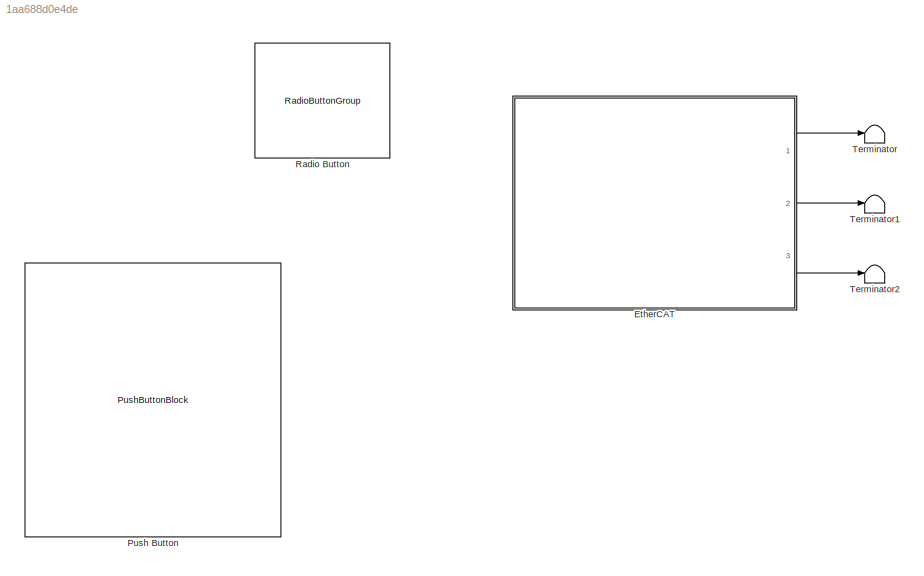
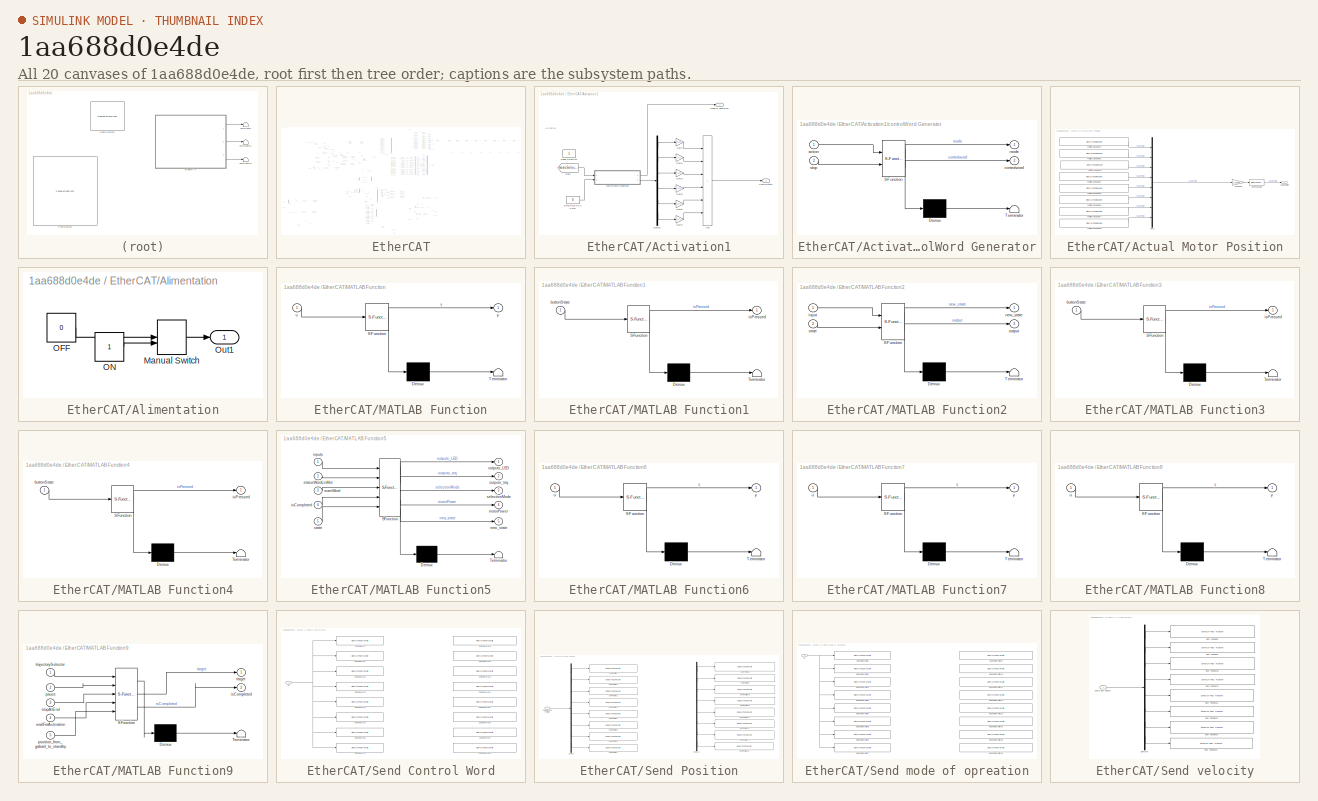
[diagram: thumbnail index - all 20 canvases of the model, root first then tree order]
MODEL slx_1aa688d0e4de
KIND model
CONFIG AbsTol = auto
CONFIG EnableMultiTasking = on
CONFIG FixedStep = 0.001
CONFIG InitFcn = load("rho_CommandCalib.mat");\nrun("importCmd.m")
CONFIG MaxStep = auto
CONFIG MinStep = auto
CONFIG RelTol = 1e-3
CONFIG SampleTimeConstraint = Unconstrained
CONFIG SolverName = FixedStepDiscrete
CONFIG StartTime = 0.0
CONFIG StopTime = inf
WORKSPACE source: mxarray member
WORKSPACE positionCmd = [145.742 145.741 145.741 145.74 145.74 145.739 145.738 145.738 145.737 145.737 145.736 145.735 ... (560000 elements, 70000x8)]
WORKSPACE tempsTraj = [25 25 20]
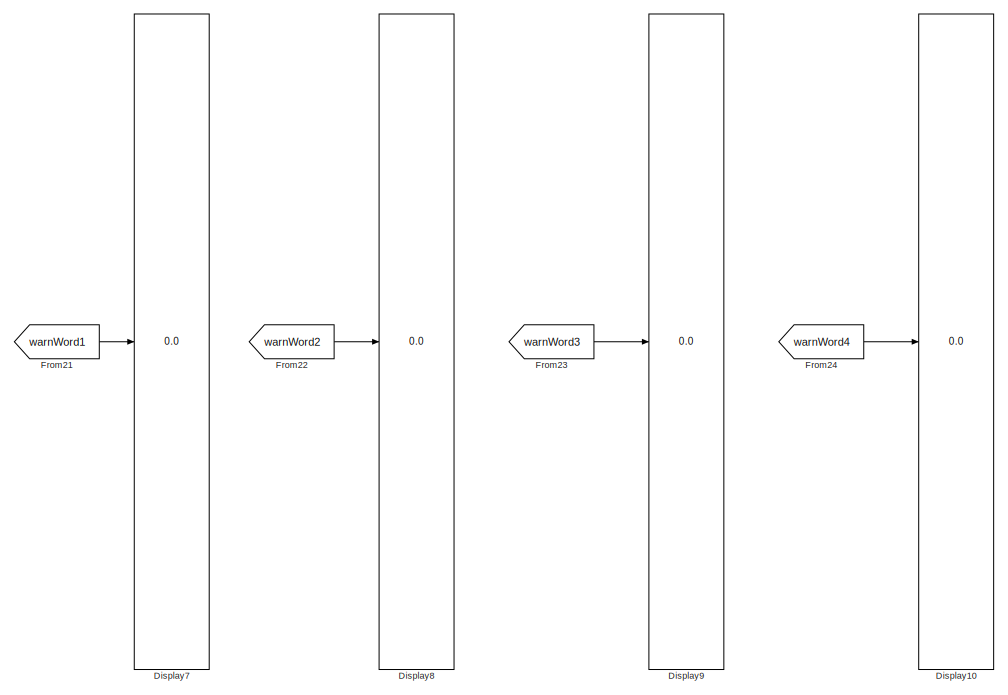
[diagram: EtherCAT - part 1/14, top right region]
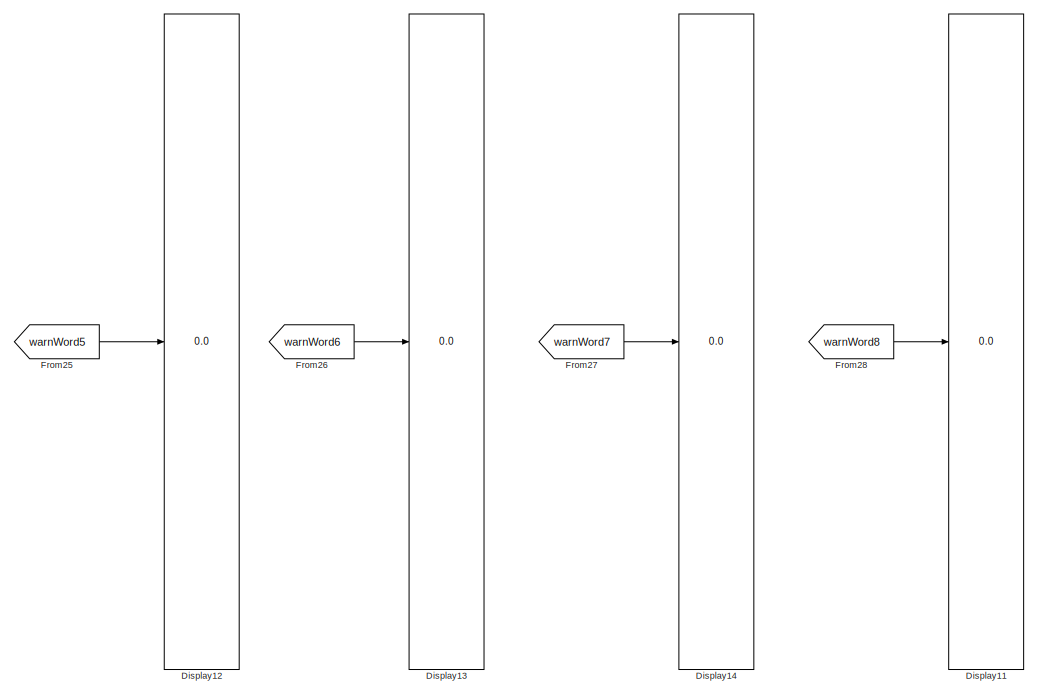
[diagram: EtherCAT - part 2/14, top right region]
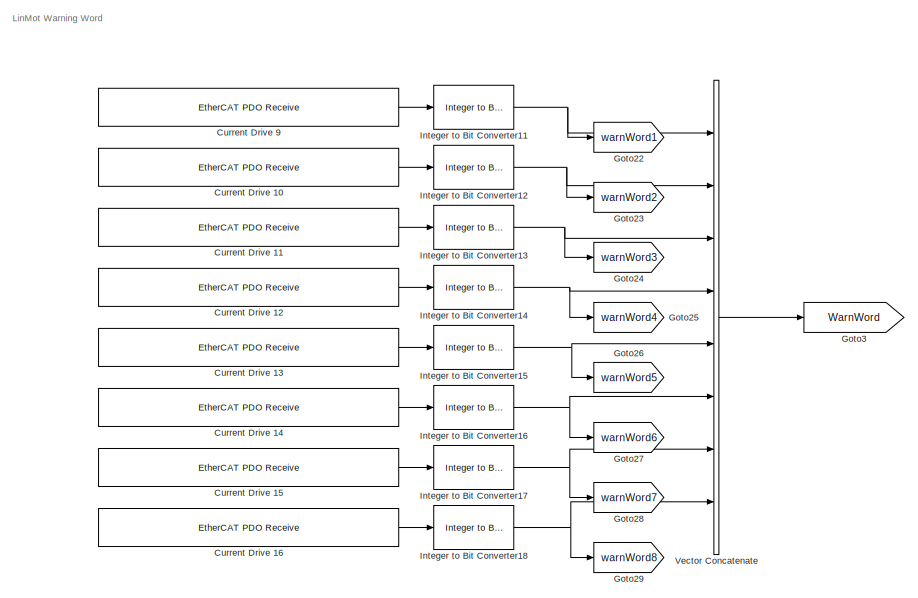
[diagram: EtherCAT - part 3/14, top center region]
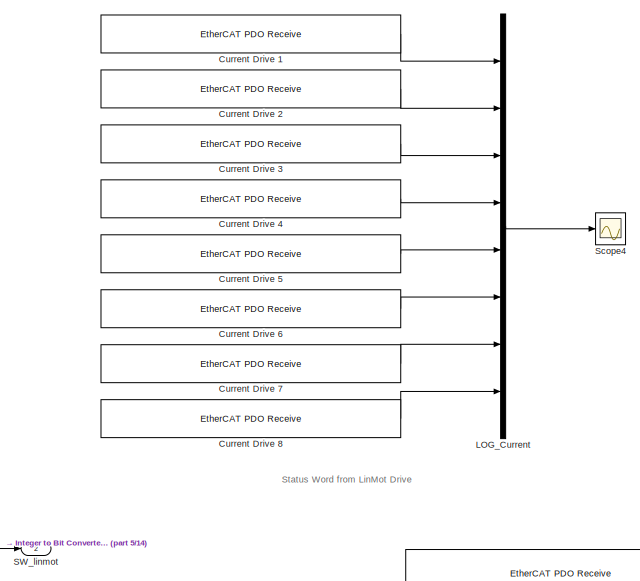
[diagram: EtherCAT - part 4/14, top center region]
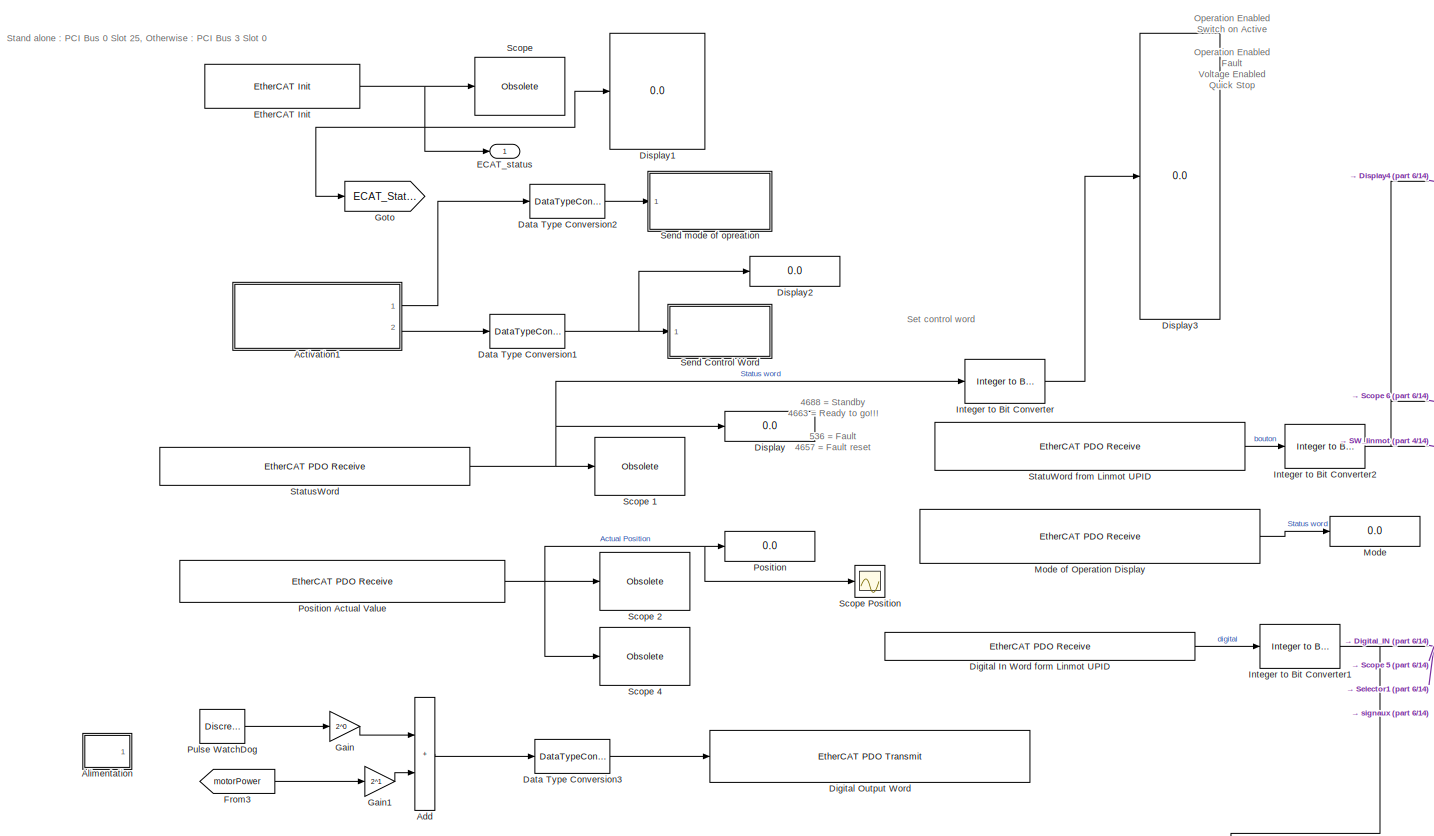
[diagram: EtherCAT - part 5/14, top left region]
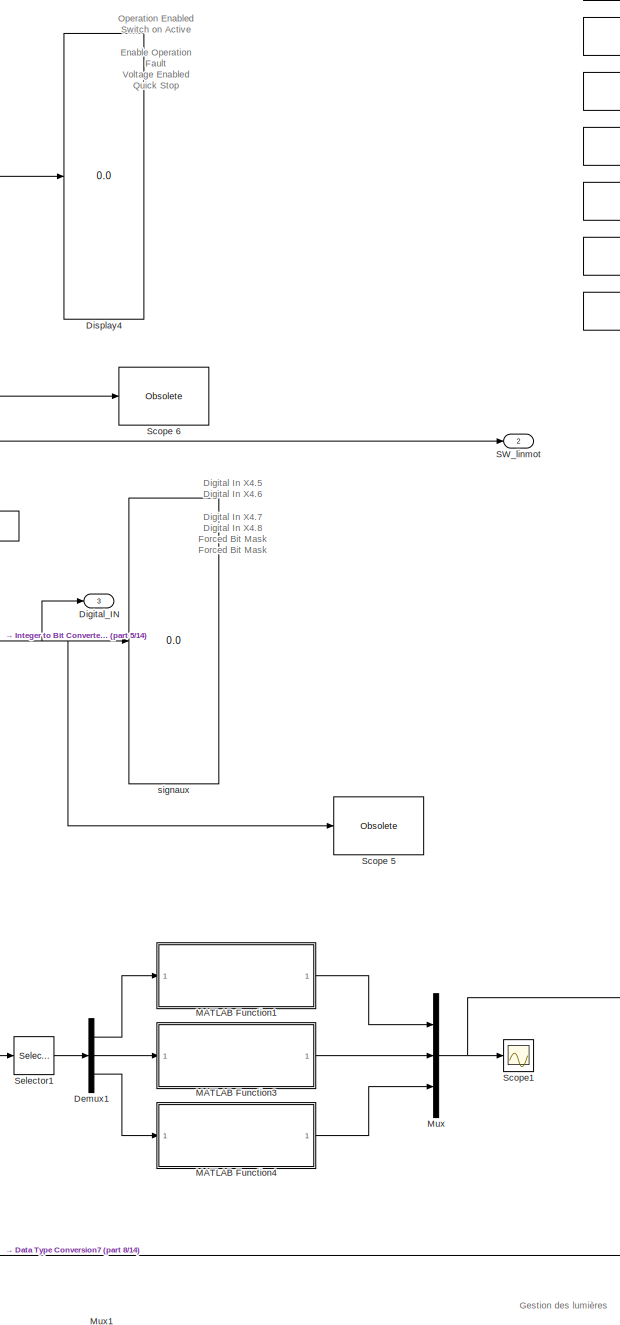
[diagram: EtherCAT - part 6/14, central region]
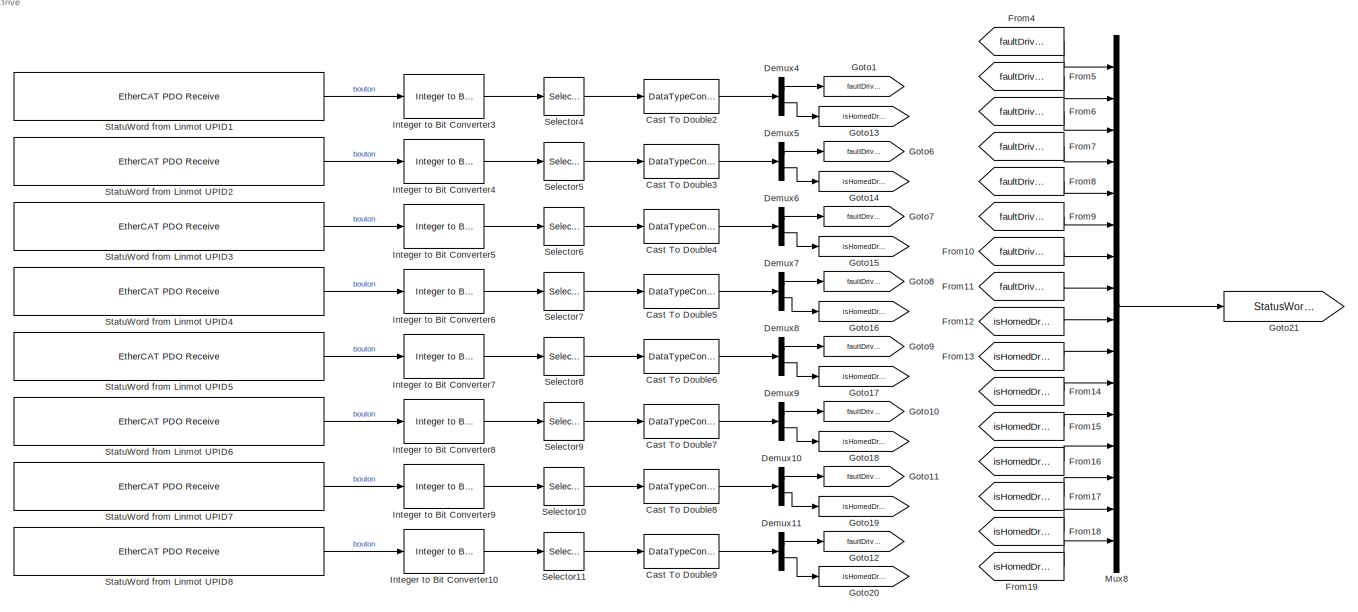
[diagram: EtherCAT - part 7/14, central region]
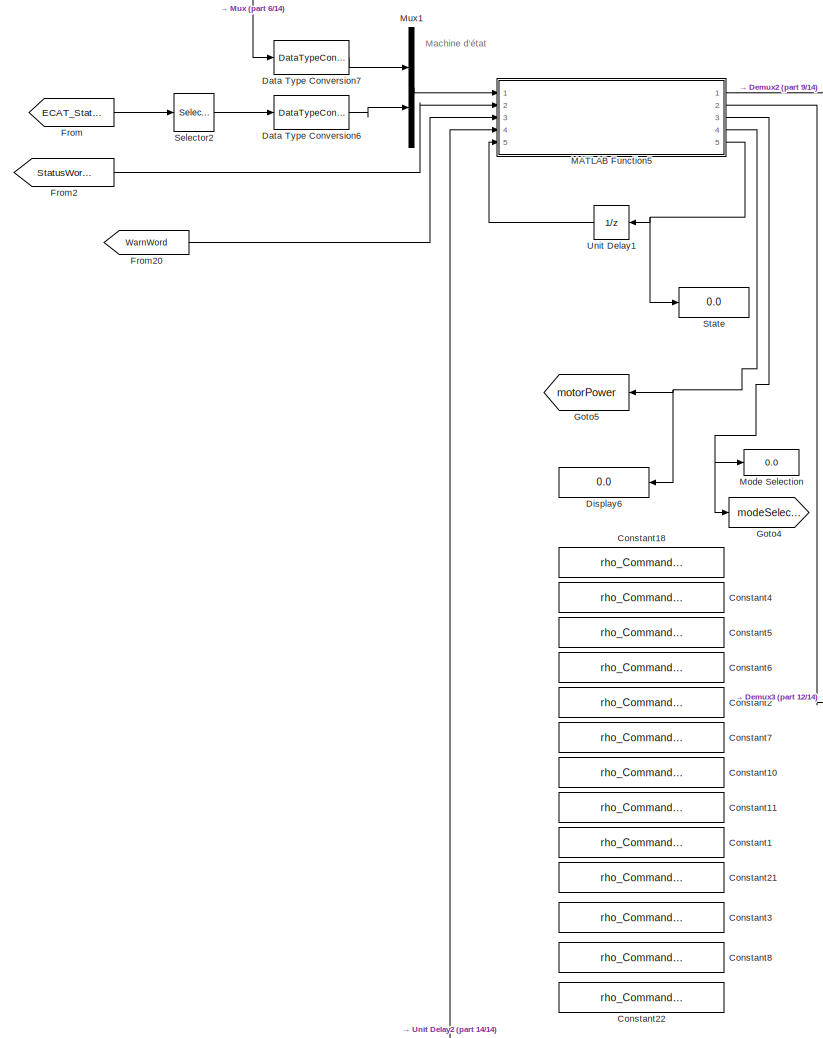
[diagram: EtherCAT - part 8/14, bottom left region]
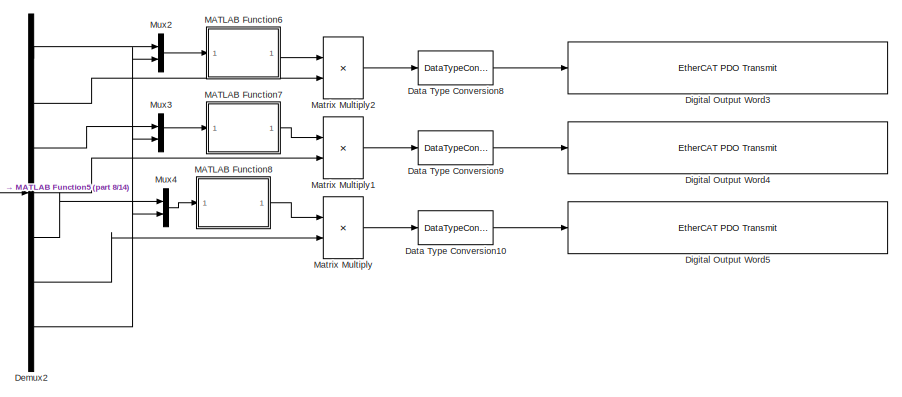
[diagram: EtherCAT - part 9/14, central region]
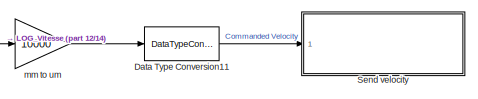
[diagram: EtherCAT - part 10/14, central region]
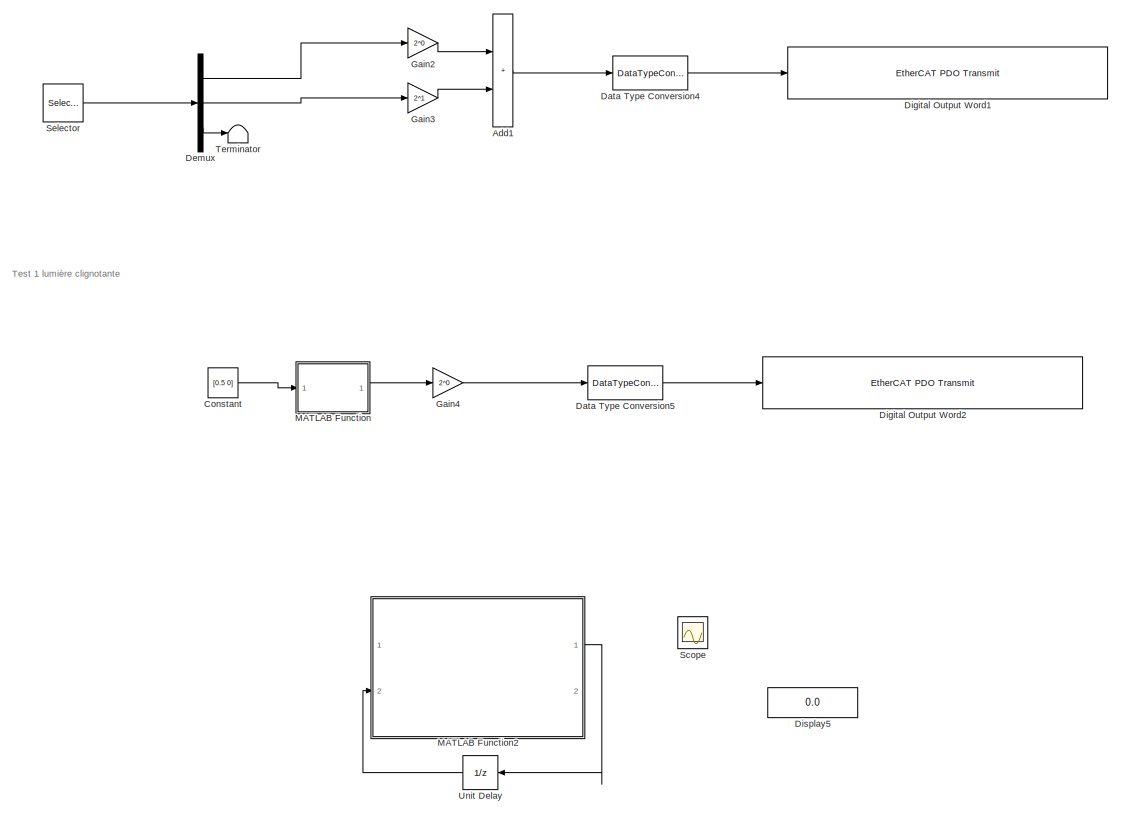
[diagram: EtherCAT - part 11/14, bottom left region]
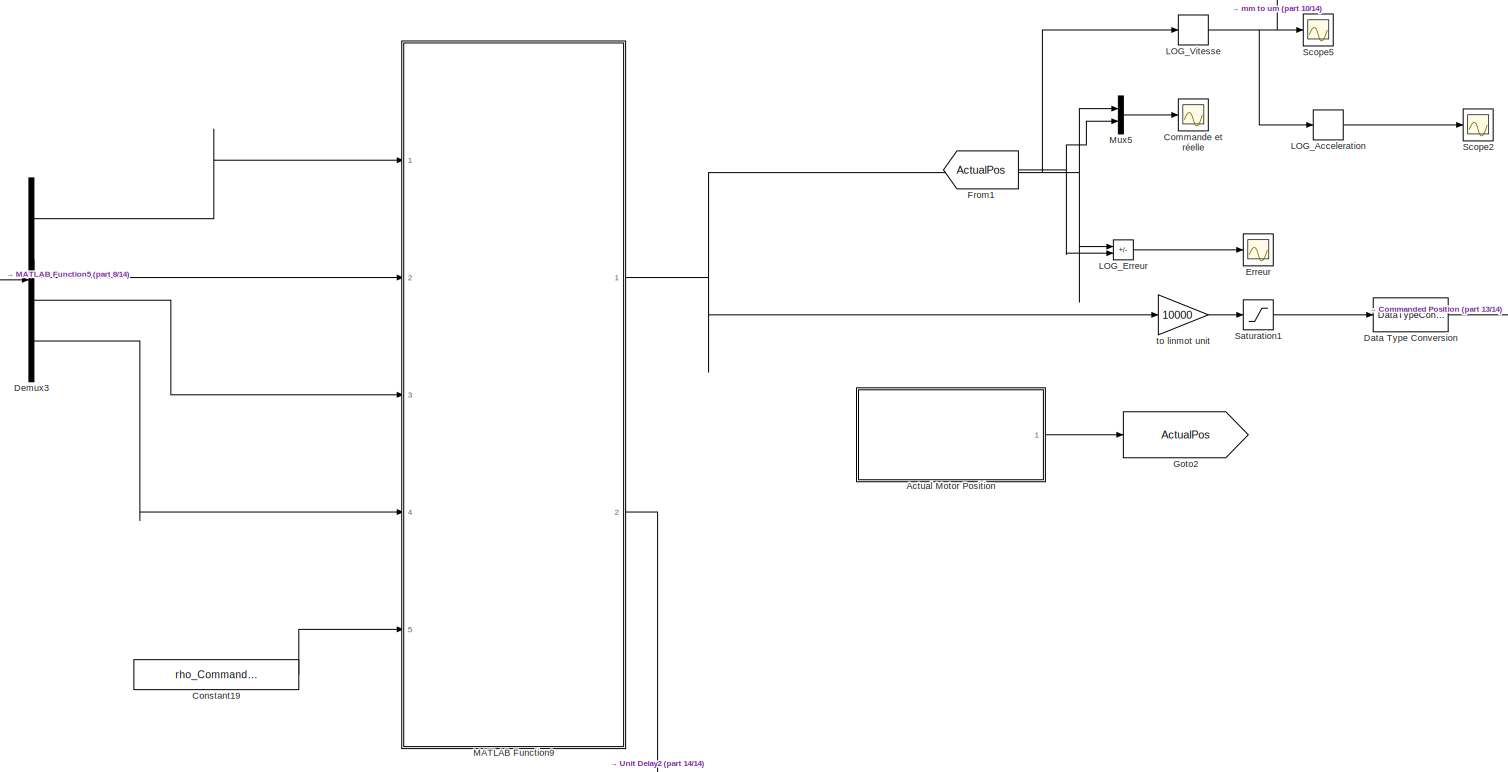
[diagram: EtherCAT - part 12/14, bottom center region]
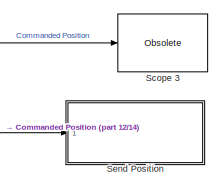
[diagram: EtherCAT - part 13/14, bottom center region]
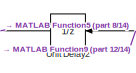
[diagram: EtherCAT - part 14/14, bottom center region]
BLOCK [SubSystem] EtherCAT
  Ports = [0, 3]
  RequestExecContextInheritance = off
BLOCK [SubSystem] EtherCAT/Activation1
  Ports = [0, 2]
  RequestExecContextInheritance = off
BLOCK [Sum] EtherCAT/Activation1/Add
  IconShape = rectangular
  Inputs = ++++++
  Ports = [6, 1]
BLOCK [Outport] EtherCAT/Activation1/ControlWord
  Port = 2
BLOCK [Demux] EtherCAT/Activation1/Demux
  Outputs = 6
  Ports = [1, 6]
BLOCK [Constant] EtherCAT/Activation1/EMERGENCY STOP
  Value = 0
BLOCK [From] EtherCAT/Activation1/From
  GotoTag = modeSelection
  TagVisibility = global
BLOCK [Gain] EtherCAT/Activation1/Gain
  Gain = 2^0
BLOCK [Gain] EtherCAT/Activation1/Gain1
  Gain = 2^1
BLOCK [Gain] EtherCAT/Activation1/Gain2
  Gain = 2^2
BLOCK [Gain] EtherCAT/Activation1/Gain3
  Gain = 2^3
BLOCK [Gain] EtherCAT/Activation1/Gain4
  Gain = 2^7
BLOCK [Gain] EtherCAT/Activation1/Gain5
  Gain = 2^4
BLOCK [Constant] EtherCAT/Activation1/Mode Selection
  Commented = on
BLOCK [SubSystem] EtherCAT/Activation1/controlWord Generator
  ErrorFcn = Stateflow.Translate.translate
  PermitHierarchicalResolution = ExplicitOnly
  Ports = [2, 2]
  RequestExecContextInheritance = off
  SFBlockType = MATLAB Function
  TreatAsAtomicUnit = on
BLOCK [Demux] EtherCAT/Activation1/controlWord Generator/ Demux 
  Outputs = 1
  Ports = [1, 1]
BLOCK [S-Function] EtherCAT/Activation1/controlWord Generator/ SFunction 
  EnableBusSupport = off
  FunctionName = sf_sfun
  PortCounts = [2 3]
  Ports = [2, 3]
  SFcnIsStateOwnerBlock = off
  SFunctionDeploymentMode = off
  Tag = Stateflow S-Function 1
BLOCK [Terminator] EtherCAT/Activation1/controlWord Generator/ Terminator 
BLOCK [Inport] EtherCAT/Activation1/controlWord Generator/action
BLOCK [Outport] EtherCAT/Activation1/controlWord Generator/controlword
  Port = 2
BLOCK [Outport] EtherCAT/Activation1/controlWord Generator/mode
BLOCK [Inport] EtherCAT/Activation1/controlWord Generator/stop
  Port = 2
BLOCK [Outport] EtherCAT/Activation1/mode of operation
BLOCK [SubSystem] EtherCAT/Actual Motor Position
  Ports = [0, 1]
  RequestExecContextInheritance = off
BLOCK [Outport] EtherCAT/Actual Motor Position/Actual Position
BLOCK [DataTypeConversion] EtherCAT/Actual Motor Position/Cast To Double2
  OutDataTypeStr = double
  RndMeth = Floor
  SaturateOnIntegerOverflow = off
BLOCK [Mux] EtherCAT/Actual Motor Position/Mux6
  DisplayOption = bar
  Inputs = 8
  Ports = [8, 1]
BLOCK [Reference] EtherCAT/Actual Motor Position/Position Actual Value1  REF=xpcethercatlib/EtherCAT PDO Receive
  Ports = [0, 1]
  Priority = 2
  SourceBlock = xpcethercatlib/EtherCAT PDO Receive
  SourceProductBaseCode = XP
  SourceType = xpcethercat_rx_var
BLOCK [Reference] EtherCAT/Actual Motor Position/Position Actual Value2  REF=xpcethercatlib/EtherCAT PDO Receive
  Ports = [0, 1]
  Priority = 2
  SourceBlock = xpcethercatlib/EtherCAT PDO Receive
  SourceProductBaseCode = XP
  SourceType = xpcethercat_rx_var
BLOCK [Reference] EtherCAT/Actual Motor Position/Position Actual Value3  REF=xpcethercatlib/EtherCAT PDO Receive
  Ports = [0, 1]
  Priority = 2
  SourceBlock = xpcethercatlib/EtherCAT PDO Receive
  SourceProductBaseCode = XP
  SourceType = xpcethercat_rx_var
BLOCK [Reference] EtherCAT/Actual Motor Position/Position Actual Value4  REF=xpcethercatlib/EtherCAT PDO Receive
  Ports = [0, 1]
  Priority = 2
  SourceBlock = xpcethercatlib/EtherCAT PDO Receive
  SourceProductBaseCode = XP
  SourceType = xpcethercat_rx_var
BLOCK [Reference] EtherCAT/Actual Motor Position/Position Actual Value5  REF=xpcethercatlib/EtherCAT PDO Receive
  Ports = [0, 1]
  Priority = 2
  SourceBlock = xpcethercatlib/EtherCAT PDO Receive
  SourceProductBaseCode = XP
  SourceType = xpcethercat_rx_var
BLOCK [Reference] EtherCAT/Actual Motor Position/Position Actual Value6  REF=xpcethercatlib/EtherCAT PDO Receive
  Ports = [0, 1]
  Priority = 2
  SourceBlock = xpcethercatlib/EtherCAT PDO Receive
  SourceProductBaseCode = XP
  SourceType = xpcethercat_rx_var
BLOCK [Reference] EtherCAT/Actual Motor Position/Position Actual Value7  REF=xpcethercatlib/EtherCAT PDO Receive
  Ports = [0, 1]
  Priority = 2
  SourceBlock = xpcethercatlib/EtherCAT PDO Receive
  SourceProductBaseCode = XP
  SourceType = xpcethercat_rx_var
BLOCK [Reference] EtherCAT/Actual Motor Position/Position Actual Value8  REF=xpcethercatlib/EtherCAT PDO Receive
  Ports = [0, 1]
  Priority = 2
  SourceBlock = xpcethercatlib/EtherCAT PDO Receive
  SourceProductBaseCode = XP
  SourceType = xpcethercat_rx_var
BLOCK [Gain] EtherCAT/Actual Motor Position/Ticks to mm
  Gain = 1/10000
BLOCK [Sum] EtherCAT/Add
  IconShape = rectangular
  Ports = [2, 1]
BLOCK [Sum] EtherCAT/Add1
  Commented = on
  IconShape = rectangular
  Ports = [2, 1]
BLOCK [SubSystem] EtherCAT/Alimentation
  Commented = on
  OpenFcn = if strcmp(get_param([gcb '/Manual Switch'], 'sw'), '1')\n  set_param([gcb '/Manual Switch'], 'sw', '0');\n  set_param(gcb, 'MaskDisplay', 'fprintf(''ON'')','BackgroundColor','green');\nelse\n  set_param([gcb '/Manual Switch'], 'sw', '1');\n  set_param(gcb, 'MaskDisplay', 'fprintf(''OFF'')','BackgroundColor','red');\nend
  Ports = [0, 1]
  RequestExecContextInheritance = off
BLOCK [ManualSwitch] EtherCAT/Alimentation/Manual Switch
BLOCK [Constant] EtherCAT/Alimentation/OFF
  Value = 0
BLOCK [Constant] EtherCAT/Alimentation/ON
BLOCK [Outport] EtherCAT/Alimentation/Out1
BLOCK [DataTypeConversion] EtherCAT/Cast To Double2
  OutDataTypeStr = double
  RndMeth = Floor
  SaturateOnIntegerOverflow = off
BLOCK [DataTypeConversion] EtherCAT/Cast To Double3
  OutDataTypeStr = double
  RndMeth = Floor
  SaturateOnIntegerOverflow = off
BLOCK [DataTypeConversion] EtherCAT/Cast To Double4
  OutDataTypeStr = double
  RndMeth = Floor
  SaturateOnIntegerOverflow = off
BLOCK [DataTypeConversion] EtherCAT/Cast To Double5
  OutDataTypeStr = double
  RndMeth = Floor
  SaturateOnIntegerOverflow = off
BLOCK [DataTypeConversion] EtherCAT/Cast To Double6
  OutDataTypeStr = double
  RndMeth = Floor
  SaturateOnIntegerOverflow = off
BLOCK [DataTypeConversion] EtherCAT/Cast To Double7
  OutDataTypeStr = double
  RndMeth = Floor
  SaturateOnIntegerOverflow = off
BLOCK [DataTypeConversion] EtherCAT/Cast To Double8
  OutDataTypeStr = double
  RndMeth = Floor
  SaturateOnIntegerOverflow = off
BLOCK [DataTypeConversion] EtherCAT/Cast To Double9
  OutDataTypeStr = double
  RndMeth = Floor
  SaturateOnIntegerOverflow = off
BLOCK [Scope] EtherCAT/Commande et réelle
  Floating = off
  NumInputPorts = 1
  Ports = [1]
  ScopeSpecificationString = Simulink.scopes.TimeScopeBlockCfg('CurrentConfiguration', extmgr.ConfigurationSet(extmgr.Configuration('Core','General UI',true),extmgr.Configuration('Core','Source UI',true),extmgr.Configuration('Sources','WiredSimulink',true,'DataLoggingVariableName','ScopeData1'),extmgr.Configuration('Visuals','Time Domain',true,'SerializedDisplays',{struct('MinYLimReal','-40.6305','MaxYLimReal','365.6745','YLa...<+2202ch>
BLOCK [Constant] EtherCAT/Constant
  Commented = on
  Value = [0.5 0]
BLOCK [Constant] EtherCAT/Constant1
  Commented = on
  Value = rho_CommandPickAndPlace
BLOCK [Constant] EtherCAT/Constant10
  Commented = on
  Value = rho_CommandInclinaisonInterieure
BLOCK [Constant] EtherCAT/Constant11
  Commented = on
  Value = rho_CommandTwist
BLOCK [Constant] EtherCAT/Constant18
  Commented = on
  Value = rho_CommandCalib
BLOCK [Constant] EtherCAT/Constant19
  Value = rho_CommandCalib
BLOCK [Constant] EtherCAT/Constant2
  Commented = on
  Value = rho_CommandCroixTilt
BLOCK [Constant] EtherCAT/Constant21
  Commented = on
  Value = rho_CommandSinusZ_decentree
BLOCK [Constant] EtherCAT/Constant22
  Commented = on
  Value = rho_CommandPickAndPlaceVertical
BLOCK [Constant] EtherCAT/Constant3
  Commented = on
  Value = rho_CommandPickAndPlaceX
BLOCK [Constant] EtherCAT/Constant4
  Commented = on
  Value = rho_CommandSinusZ
BLOCK [Constant] EtherCAT/Constant5
  Commented = on
  Value = rho_CommandCircXY
BLOCK [Constant] EtherCAT/Constant6
  Commented = on
  Value = rho_CommandCroixXY
BLOCK [Constant] EtherCAT/Constant7
  Commented = on
  Value = rho_CommandInclinaison
BLOCK [Constant] EtherCAT/Constant8
  Commented = on
  Value = rho_CommandPickAndPlaceTilt
BLOCK [Reference] EtherCAT/Current Drive 1  REF=slrealtimeethercatlib/EtherCAT PDO Receive
  Ports = [0, 1]
  Priority = 2
  SourceBlock = slrealtimeethercatlib/EtherCAT PDO Receive
  SourceProductBaseCode = XP
  SourceType = ethercat_pdo_receive
BLOCK [Reference] EtherCAT/Current Drive 10  REF=slrealtimeethercatlib/EtherCAT PDO Receive
  Ports = [0, 1]
  Priority = 2
  SourceBlock = slrealtimeethercatlib/EtherCAT PDO Receive
  SourceProductBaseCode = XP
  SourceType = ethercat_pdo_receive
BLOCK [Reference] EtherCAT/Current Drive 11  REF=slrealtimeethercatlib/EtherCAT PDO Receive
  Ports = [0, 1]
  Priority = 2
  SourceBlock = slrealtimeethercatlib/EtherCAT PDO Receive
  SourceProductBaseCode = XP
  SourceType = ethercat_pdo_receive
BLOCK [Reference] EtherCAT/Current Drive 12  REF=slrealtimeethercatlib/EtherCAT PDO Receive
  Ports = [0, 1]
  Priority = 2
  SourceBlock = slrealtimeethercatlib/EtherCAT PDO Receive
  SourceProductBaseCode = XP
  SourceType = ethercat_pdo_receive
BLOCK [Reference] EtherCAT/Current Drive 13  REF=slrealtimeethercatlib/EtherCAT PDO Receive
  Ports = [0, 1]
  Priority = 2
  SourceBlock = slrealtimeethercatlib/EtherCAT PDO Receive
  SourceProductBaseCode = XP
  SourceType = ethercat_pdo_receive
BLOCK [Reference] EtherCAT/Current Drive 14  REF=slrealtimeethercatlib/EtherCAT PDO Receive
  Ports = [0, 1]
  Priority = 2
  SourceBlock = slrealtimeethercatlib/EtherCAT PDO Receive
  SourceProductBaseCode = XP
  SourceType = ethercat_pdo_receive
BLOCK [Reference] EtherCAT/Current Drive 15  REF=slrealtimeethercatlib/EtherCAT PDO Receive
  Ports = [0, 1]
  Priority = 2
  SourceBlock = slrealtimeethercatlib/EtherCAT PDO Receive
  SourceProductBaseCode = XP
  SourceType = ethercat_pdo_receive
BLOCK [Reference] EtherCAT/Current Drive 16  REF=slrealtimeethercatlib/EtherCAT PDO Receive
  Ports = [0, 1]
  Priority = 2
  SourceBlock = slrealtimeethercatlib/EtherCAT PDO Receive
  SourceProductBaseCode = XP
  SourceType = ethercat_pdo_receive
BLOCK [Reference] EtherCAT/Current Drive 2  REF=slrealtimeethercatlib/EtherCAT PDO Receive
  Ports = [0, 1]
  Priority = 2
  SourceBlock = slrealtimeethercatlib/EtherCAT PDO Receive
  SourceProductBaseCode = XP
  SourceType = ethercat_pdo_receive
BLOCK [Reference] EtherCAT/Current Drive 3  REF=slrealtimeethercatlib/EtherCAT PDO Receive
  Ports = [0, 1]
  Priority = 2
  SourceBlock = slrealtimeethercatlib/EtherCAT PDO Receive
  SourceProductBaseCode = XP
  SourceType = ethercat_pdo_receive
BLOCK [Reference] EtherCAT/Current Drive 4  REF=slrealtimeethercatlib/EtherCAT PDO Receive
  Ports = [0, 1]
  Priority = 2
  SourceBlock = slrealtimeethercatlib/EtherCAT PDO Receive
  SourceProductBaseCode = XP
  SourceType = ethercat_pdo_receive
BLOCK [Reference] EtherCAT/Current Drive 5  REF=slrealtimeethercatlib/EtherCAT PDO Receive
  Ports = [0, 1]
  Priority = 2
  SourceBlock = slrealtimeethercatlib/EtherCAT PDO Receive
  SourceProductBaseCode = XP
  SourceType = ethercat_pdo_receive
BLOCK [Reference] EtherCAT/Current Drive 6  REF=slrealtimeethercatlib/EtherCAT PDO Receive
  Ports = [0, 1]
  Priority = 2
  SourceBlock = slrealtimeethercatlib/EtherCAT PDO Receive
  SourceProductBaseCode = XP
  SourceType = ethercat_pdo_receive
BLOCK [Reference] EtherCAT/Current Drive 7  REF=slrealtimeethercatlib/EtherCAT PDO Receive
  Ports = [0, 1]
  Priority = 2
  SourceBlock = slrealtimeethercatlib/EtherCAT PDO Receive
  SourceProductBaseCode = XP
  SourceType = ethercat_pdo_receive
BLOCK [Reference] EtherCAT/Current Drive 8  REF=slrealtimeethercatlib/EtherCAT PDO Receive
  Ports = [0, 1]
  Priority = 2
  SourceBlock = slrealtimeethercatlib/EtherCAT PDO Receive
  SourceProductBaseCode = XP
  SourceType = ethercat_pdo_receive
BLOCK [Reference] EtherCAT/Current Drive 9  REF=slrealtimeethercatlib/EtherCAT PDO Receive
  Ports = [0, 1]
  Priority = 2
  SourceBlock = slrealtimeethercatlib/EtherCAT PDO Receive
  SourceProductBaseCode = XP
  SourceType = ethercat_pdo_receive
BLOCK [DataTypeConversion] EtherCAT/Data Type Conversion
  OutDataTypeStr = int32
  RndMeth = Floor
  SaturateOnIntegerOverflow = off
BLOCK [DataTypeConversion] EtherCAT/Data Type Conversion1
  OutDataTypeStr = uint16
  RndMeth = Floor
  SaturateOnIntegerOverflow = off
BLOCK [DataTypeConversion] EtherCAT/Data Type Conversion10
  OutDataTypeStr = uint16
  RndMeth = Floor
  SaturateOnIntegerOverflow = off
BLOCK [DataTypeConversion] EtherCAT/Data Type Conversion11
  Commented = on
  OutDataTypeStr = int32
  RndMeth = Floor
  SaturateOnIntegerOverflow = off
BLOCK [DataTypeConversion] EtherCAT/Data Type Conversion2
  OutDataTypeStr = int8
  RndMeth = Floor
  SaturateOnIntegerOverflow = off
BLOCK [DataTypeConversion] EtherCAT/Data Type Conversion3
  OutDataTypeStr = uint16
  RndMeth = Floor
  SaturateOnIntegerOverflow = off
BLOCK [DataTypeConversion] EtherCAT/Data Type Conversion4
  Commented = on
  OutDataTypeStr = uint16
  RndMeth = Floor
  SaturateOnIntegerOverflow = off
BLOCK [DataTypeConversion] EtherCAT/Data Type Conversion5
  Commented = on
  OutDataTypeStr = uint16
  RndMeth = Floor
  SaturateOnIntegerOverflow = off
BLOCK [DataTypeConversion] EtherCAT/Data Type Conversion6
  OutDataTypeStr = double
  RndMeth = Floor
  SaturateOnIntegerOverflow = off
BLOCK [DataTypeConversion] EtherCAT/Data Type Conversion7
  OutDataTypeStr = double
  RndMeth = Floor
  SaturateOnIntegerOverflow = off
BLOCK [DataTypeConversion] EtherCAT/Data Type Conversion8
  OutDataTypeStr = uint16
  RndMeth = Floor
  SaturateOnIntegerOverflow = off
BLOCK [DataTypeConversion] EtherCAT/Data Type Conversion9
  OutDataTypeStr = uint16
  RndMeth = Floor
  SaturateOnIntegerOverflow = off
BLOCK [Demux] EtherCAT/Demux
  Commented = on
  Outputs = 3
  Ports = [1, 3]
BLOCK [Demux] EtherCAT/Demux1
  Outputs = 3
  Ports = [1, 3]
BLOCK [Demux] EtherCAT/Demux10
  Outputs = 2
  Ports = [1, 2]
BLOCK [Demux] EtherCAT/Demux11
  Outputs = 2
  Ports = [1, 2]
BLOCK [Demux] EtherCAT/Demux2
  Outputs = 7
  Ports = [1, 7]
BLOCK [Demux] EtherCAT/Demux3
  Ports = [1, 4]
BLOCK [Demux] EtherCAT/Demux4
  Outputs = 2
  Ports = [1, 2]
BLOCK [Demux] EtherCAT/Demux5
  Outputs = 2
  Ports = [1, 2]
BLOCK [Demux] EtherCAT/Demux6
  Outputs = 2
  Ports = [1, 2]
BLOCK [Demux] EtherCAT/Demux7
  Outputs = 2
  Ports = [1, 2]
BLOCK [Demux] EtherCAT/Demux8
  Outputs = 2
  Ports = [1, 2]
BLOCK [Demux] EtherCAT/Demux9
  Outputs = 2
  Ports = [1, 2]
BLOCK [Reference] EtherCAT/Digital In Word form Linmot UPID  REF=slrealtimeethercatlib/EtherCAT PDO Receive
  Ports = [0, 1]
  Priority = 2
  SourceBlock = slrealtimeethercatlib/EtherCAT PDO Receive
  SourceProductBaseCode = XP
  SourceType = ethercat_pdo_receive
BLOCK [Reference] EtherCAT/Digital Output Word  REF=slrealtimeethercatlib/EtherCAT PDO Transmit
  Ports = [1]
  Priority = 3
  SourceBlock = slrealtimeethercatlib/EtherCAT PDO Transmit
  SourceProductBaseCode = XP
  SourceType = ethercat_pdo_send
BLOCK [Reference] EtherCAT/Digital Output Word1  REF=slrealtimeethercatlib/EtherCAT PDO Transmit
  Commented = on
  Ports = [1]
  Priority = 3
  SourceBlock = slrealtimeethercatlib/EtherCAT PDO Transmit
  SourceProductBaseCode = XP
  SourceType = ethercat_pdo_send
BLOCK [Reference] EtherCAT/Digital Output Word2  REF=slrealtimeethercatlib/EtherCAT PDO Transmit
  Commented = on
  Ports = [1]
  Priority = 3
  SourceBlock = slrealtimeethercatlib/EtherCAT PDO Transmit
  SourceProductBaseCode = XP
  SourceType = ethercat_pdo_send
BLOCK [Reference] EtherCAT/Digital Output Word3  REF=slrealtimeethercatlib/EtherCAT PDO Transmit
  Ports = [1]
  Priority = 3
  SourceBlock = slrealtimeethercatlib/EtherCAT PDO Transmit
  SourceProductBaseCode = XP
  SourceType = ethercat_pdo_send
BLOCK [Reference] EtherCAT/Digital Output Word4  REF=slrealtimeethercatlib/EtherCAT PDO Transmit
  Ports = [1]
  Priority = 3
  SourceBlock = slrealtimeethercatlib/EtherCAT PDO Transmit
  SourceProductBaseCode = XP
  SourceType = ethercat_pdo_send
BLOCK [Reference] EtherCAT/Digital Output Word5  REF=slrealtimeethercatlib/EtherCAT PDO Transmit
  Ports = [1]
  Priority = 3
  SourceBlock = slrealtimeethercatlib/EtherCAT PDO Transmit
  SourceProductBaseCode = XP
  SourceType = ethercat_pdo_send
BLOCK [Outport] EtherCAT/Digital_IN
  Port = 3
BLOCK [Display] EtherCAT/Display
  Decimation = 1
  Ports = [1]
BLOCK [Display] EtherCAT/Display1
  Decimation = 1
  Ports = [1]
BLOCK [Display] EtherCAT/Display10
  Decimation = 1
  Ports = [1]
BLOCK [Display] EtherCAT/Display11
  Decimation = 1
  Ports = [1]
BLOCK [Display] EtherCAT/Display12
  Decimation = 1
  Ports = [1]
BLOCK [Display] EtherCAT/Display13
  Decimation = 1
  Ports = [1]
BLOCK [Display] EtherCAT/Display14
  Decimation = 1
  Ports = [1]
BLOCK [Display] EtherCAT/Display2
  Decimation = 1
  Ports = [1]
BLOCK [Display] EtherCAT/Display3
  Decimation = 1
  Ports = [1]
BLOCK [Display] EtherCAT/Display4
  Decimation = 1
  Ports = [1]
BLOCK [Display] EtherCAT/Display5
  Commented = on
  Decimation = 1
  Ports = [1]
BLOCK [Display] EtherCAT/Display6
  Decimation = 1
  NameLocation = top
  Ports = [1]
BLOCK [Display] EtherCAT/Display7
  Decimation = 1
  Ports = [1]
BLOCK [Display] EtherCAT/Display8
  Decimation = 1
  Ports = [1]
BLOCK [Display] EtherCAT/Display9
  Decimation = 1
  Ports = [1]
BLOCK [Outport] EtherCAT/ECAT_status
BLOCK [Scope] EtherCAT/Erreur
  Floating = off
  NumInputPorts = 1
  Ports = [1]
  ScopeSpecificationString = Simulink.scopes.TimeScopeBlockCfg('CurrentConfiguration', extmgr.ConfigurationSet(extmgr.Configuration('Core','General UI',true),extmgr.Configuration('Core','Source UI',true),extmgr.Configuration('Sources','WiredSimulink',true,'DataLoggingVariableName','ScopeData1'),extmgr.Configuration('Visuals','Time Domain',true,'SerializedDisplays',{struct('MinYLimReal','-9.27949','MaxYLimReal','15.43471','YLa...<+1755ch>
BLOCK [Reference] EtherCAT/EtherCAT Init   REF=slrealtimeethercatlib/EtherCAT Init
  Ports = [0, 1]
  Priority = 0
  SourceBlock = slrealtimeethercatlib/EtherCAT Init
  SourceProductBaseCode = XP
  SourceType = ethercatinit
BLOCK [From] EtherCAT/From
  GotoTag = ECAT_Status
BLOCK [From] EtherCAT/From1
  GotoTag = ActualPos
BLOCK [From] EtherCAT/From10
  GotoTag = faultDrive7
BLOCK [From] EtherCAT/From11
  GotoTag = faultDrive8
BLOCK [From] EtherCAT/From12
  GotoTag = isHomedDrive1
BLOCK [From] EtherCAT/From13
  GotoTag = isHomedDrive2
BLOCK [From] EtherCAT/From14
  GotoTag = isHomedDrive3
BLOCK [From] EtherCAT/From15
  GotoTag = isHomedDrive4
BLOCK [From] EtherCAT/From16
  GotoTag = isHomedDrive5
BLOCK [From] EtherCAT/From17
  GotoTag = isHomedDrive6
BLOCK [From] EtherCAT/From18
  GotoTag = isHomedDrive7
BLOCK [From] EtherCAT/From19
  GotoTag = isHomedDrive8
BLOCK [From] EtherCAT/From2
  GotoTag = StatusWord_LinMot
BLOCK [From] EtherCAT/From20
  GotoTag = WarnWord
BLOCK [From] EtherCAT/From21
  GotoTag = warnWord1
BLOCK [From] EtherCAT/From22
  GotoTag = warnWord2
BLOCK [From] EtherCAT/From23
  GotoTag = warnWord3
BLOCK [From] EtherCAT/From24
  GotoTag = warnWord4
BLOCK [From] EtherCAT/From25
  GotoTag = warnWord5
BLOCK [From] EtherCAT/From26
  GotoTag = warnWord6
BLOCK [From] EtherCAT/From27
  GotoTag = warnWord7
BLOCK [From] EtherCAT/From28
  GotoTag = warnWord8
BLOCK [From] EtherCAT/From3
  GotoTag = motorPower
BLOCK [From] EtherCAT/From4
  GotoTag = faultDrive1
BLOCK [From] EtherCAT/From5
  GotoTag = faultDrive2
BLOCK [From] EtherCAT/From6
  GotoTag = faultDrive3
BLOCK [From] EtherCAT/From7
  GotoTag = faultDrive4
BLOCK [From] EtherCAT/From8
  GotoTag = faultDrive5
BLOCK [From] EtherCAT/From9
  GotoTag = faultDrive6
BLOCK [Gain] EtherCAT/Gain
  Gain = 2^0
BLOCK [Gain] EtherCAT/Gain1
  Gain = 2^1
BLOCK [Gain] EtherCAT/Gain2
  Commented = on
  Gain = 2^0
BLOCK [Gain] EtherCAT/Gain3
  Commented = on
  Gain = 2^1
BLOCK [Gain] EtherCAT/Gain4
  Commented = on
  Gain = 2^0
BLOCK [Goto] EtherCAT/Goto
  GotoTag = ECAT_Status
BLOCK [Goto] EtherCAT/Goto1
  GotoTag = faultDrive1
BLOCK [Goto] EtherCAT/Goto10
  GotoTag = faultDrive6
BLOCK [Goto] EtherCAT/Goto11
  GotoTag = faultDrive7
BLOCK [Goto] EtherCAT/Goto12
  GotoTag = faultDrive8
BLOCK [Goto] EtherCAT/Goto13
  GotoTag = isHomedDrive1
BLOCK [Goto] EtherCAT/Goto14
  GotoTag = isHomedDrive2
BLOCK [Goto] EtherCAT/Goto15
  GotoTag = isHomedDrive3
BLOCK [Goto] EtherCAT/Goto16
  GotoTag = isHomedDrive4
BLOCK [Goto] EtherCAT/Goto17
  GotoTag = isHomedDrive5
BLOCK [Goto] EtherCAT/Goto18
  GotoTag = isHomedDrive6
BLOCK [Goto] EtherCAT/Goto19
  GotoTag = isHomedDrive7
BLOCK [Goto] EtherCAT/Goto2
  GotoTag = ActualPos
BLOCK [Goto] EtherCAT/Goto20
  GotoTag = isHomedDrive8
BLOCK [Goto] EtherCAT/Goto21
  GotoTag = StatusWord_LinMot
BLOCK [Goto] EtherCAT/Goto22
  GotoTag = warnWord1
BLOCK [Goto] EtherCAT/Goto23
  GotoTag = warnWord2
BLOCK [Goto] EtherCAT/Goto24
  GotoTag = warnWord3
BLOCK [Goto] EtherCAT/Goto25
  GotoTag = warnWord4
BLOCK [Goto] EtherCAT/Goto26
  GotoTag = warnWord5
BLOCK [Goto] EtherCAT/Goto27
  GotoTag = warnWord6
BLOCK [Goto] EtherCAT/Goto28
  GotoTag = warnWord7
BLOCK [Goto] EtherCAT/Goto29
  GotoTag = warnWord8
BLOCK [Goto] EtherCAT/Goto3
  GotoTag = WarnWord
BLOCK [Goto] EtherCAT/Goto4
  GotoTag = modeSelection
  TagVisibility = global
BLOCK [Goto] EtherCAT/Goto5
  GotoTag = motorPower
  NameLocation = top
BLOCK [Goto] EtherCAT/Goto6
  GotoTag = faultDrive2
BLOCK [Goto] EtherCAT/Goto7
  GotoTag = faultDrive3
BLOCK [Goto] EtherCAT/Goto8
  GotoTag = faultDrive4
BLOCK [Goto] EtherCAT/Goto9
  GotoTag = faultDrive5
BLOCK [Reference] EtherCAT/Integer to Bit Converter  REF=commutil2/Integer to Bit
Converter
  Ports = [1, 1]
  SourceBlock = commutil2/Integer to Bit\nConverter
  SourceProductBaseCode = CM
  SourceType = Integer to Bit Converter
BLOCK [Reference] EtherCAT/Integer to Bit Converter1  REF=commutil2/Integer to Bit
Converter
  Ports = [1, 1]
  SourceBlock = commutil2/Integer to Bit\nConverter
  SourceProductBaseCode = CM
  SourceType = Integer to Bit Converter
BLOCK [Reference] EtherCAT/Integer to Bit Converter10  REF=commutil2/Integer to Bit
Converter
  Ports = [1, 1]
  SourceBlock = commutil2/Integer to Bit\nConverter
  SourceProductBaseCode = CM
  SourceType = Integer to Bit Converter
BLOCK [Reference] EtherCAT/Integer to Bit Converter11  REF=commutil2/Integer to Bit
Converter
  Ports = [1, 1]
  SourceBlock = commutil2/Integer to Bit\nConverter
  SourceProductBaseCode = CM
  SourceType = Integer to Bit Converter
BLOCK [Reference] EtherCAT/Integer to Bit Converter12  REF=commutil2/Integer to Bit
Converter
  Ports = [1, 1]
  SourceBlock = commutil2/Integer to Bit\nConverter
  SourceProductBaseCode = CM
  SourceType = Integer to Bit Converter
BLOCK [Reference] EtherCAT/Integer to Bit Converter13  REF=commutil2/Integer to Bit
Converter
  Ports = [1, 1]
  SourceBlock = commutil2/Integer to Bit\nConverter
  SourceProductBaseCode = CM
  SourceType = Integer to Bit Converter
BLOCK [Reference] EtherCAT/Integer to Bit Converter14  REF=commutil2/Integer to Bit
Converter
  Ports = [1, 1]
  SourceBlock = commutil2/Integer to Bit\nConverter
  SourceProductBaseCode = CM
  SourceType = Integer to Bit Converter
BLOCK [Reference] EtherCAT/Integer to Bit Converter15  REF=commutil2/Integer to Bit
Converter
  Ports = [1, 1]
  SourceBlock = commutil2/Integer to Bit\nConverter
  SourceProductBaseCode = CM
  SourceType = Integer to Bit Converter
BLOCK [Reference] EtherCAT/Integer to Bit Converter16  REF=commutil2/Integer to Bit
Converter
  Ports = [1, 1]
  SourceBlock = commutil2/Integer to Bit\nConverter
  SourceProductBaseCode = CM
  SourceType = Integer to Bit Converter
BLOCK [Reference] EtherCAT/Integer to Bit Converter17  REF=commutil2/Integer to Bit
Converter
  Ports = [1, 1]
  SourceBlock = commutil2/Integer to Bit\nConverter
  SourceProductBaseCode = CM
  SourceType = Integer to Bit Converter
BLOCK [Reference] EtherCAT/Integer to Bit Converter18  REF=commutil2/Integer to Bit
Converter
  Ports = [1, 1]
  SourceBlock = commutil2/Integer to Bit\nConverter
  SourceProductBaseCode = CM
  SourceType = Integer to Bit Converter
BLOCK [Reference] EtherCAT/Integer to Bit Converter2  REF=commutil2/Integer to Bit
Converter
  Ports = [1, 1]
  SourceBlock = commutil2/Integer to Bit\nConverter
  SourceProductBaseCode = CM
  SourceType = Integer to Bit Converter
BLOCK [Reference] EtherCAT/Integer to Bit Converter3  REF=commutil2/Integer to Bit
Converter
  Ports = [1, 1]
  SourceBlock = commutil2/Integer to Bit\nConverter
  SourceProductBaseCode = CM
  SourceType = Integer to Bit Converter
BLOCK [Reference] EtherCAT/Integer to Bit Converter4  REF=commutil2/Integer to Bit
Converter
  Ports = [1, 1]
  SourceBlock = commutil2/Integer to Bit\nConverter
  SourceProductBaseCode = CM
  SourceType = Integer to Bit Converter
BLOCK [Reference] EtherCAT/Integer to Bit Converter5  REF=commutil2/Integer to Bit
Converter
  Ports = [1, 1]
  SourceBlock = commutil2/Integer to Bit\nConverter
  SourceProductBaseCode = CM
  SourceType = Integer to Bit Converter
BLOCK [Reference] EtherCAT/Integer to Bit Converter6  REF=commutil2/Integer to Bit
Converter
  Ports = [1, 1]
  SourceBlock = commutil2/Integer to Bit\nConverter
  SourceProductBaseCode = CM
  SourceType = Integer to Bit Converter
BLOCK [Reference] EtherCAT/Integer to Bit Converter7  REF=commutil2/Integer to Bit
Converter
  Ports = [1, 1]
  SourceBlock = commutil2/Integer to Bit\nConverter
  SourceProductBaseCode = CM
  SourceType = Integer to Bit Converter
BLOCK [Reference] EtherCAT/Integer to Bit Converter8  REF=commutil2/Integer to Bit
Converter
  Ports = [1, 1]
  SourceBlock = commutil2/Integer to Bit\nConverter
  SourceProductBaseCode = CM
  SourceType = Integer to Bit Converter
BLOCK [Reference] EtherCAT/Integer to Bit Converter9  REF=commutil2/Integer to Bit
Converter
  Ports = [1, 1]
  SourceBlock = commutil2/Integer to Bit\nConverter
  SourceProductBaseCode = CM
  SourceType = Integer to Bit Converter
BLOCK [Derivative] EtherCAT/LOG_Acceleration
BLOCK [Mux] EtherCAT/LOG_Current
  DisplayOption = bar
  Inputs = 8
  Ports = [8, 1]
BLOCK [Sum] EtherCAT/LOG_Erreur
  IconShape = rectangular
  Inputs = +-
  Ports = [2, 1]
BLOCK [Derivative] EtherCAT/LOG_Vitesse
BLOCK [SubSystem] EtherCAT/MATLAB Function
  Commented = on
  ErrorFcn = Stateflow.Translate.translate
  PermitHierarchicalResolution = ExplicitOnly
  Ports = [1, 1]
  RequestExecContextInheritance = off
  SFBlockType = MATLAB Function
  TreatAsAtomicUnit = on
BLOCK [Demux] EtherCAT/MATLAB Function/ Demux 
  Outputs = 1
  Ports = [1, 1]
BLOCK [S-Function] EtherCAT/MATLAB Function/ SFunction 
  EnableBusSupport = off
  FunctionName = sf_sfun
  PortCounts = [1 2]
  Ports = [1, 2]
  SFcnIsStateOwnerBlock = off
  SFunctionDeploymentMode = off
  Tag = Stateflow S-Function 3
BLOCK [Terminator] EtherCAT/MATLAB Function/ Terminator 
BLOCK [Inport] EtherCAT/MATLAB Function/u
BLOCK [Outport] EtherCAT/MATLAB Function/y
BLOCK [SubSystem] EtherCAT/MATLAB Function1
  ErrorFcn = Stateflow.Translate.translate
  PermitHierarchicalResolution = ExplicitOnly
  Ports = [1, 1]
  RequestExecContextInheritance = off
  SFBlockType = MATLAB Function
  TreatAsAtomicUnit = on
BLOCK [Demux] EtherCAT/MATLAB Function1/ Demux 
  Outputs = 1
  Ports = [1, 1]
BLOCK [S-Function] EtherCAT/MATLAB Function1/ SFunction 
  EnableBusSupport = off
  FunctionName = sf_sfun
  PortCounts = [1 2]
  Ports = [1, 2]
  SFcnIsStateOwnerBlock = off
  SFunctionDeploymentMode = off
  Tag = Stateflow S-Function 4
BLOCK [Terminator] EtherCAT/MATLAB Function1/ Terminator 
BLOCK [Inport] EtherCAT/MATLAB Function1/buttonState
BLOCK [Outport] EtherCAT/MATLAB Function1/isPressed
BLOCK [SubSystem] EtherCAT/MATLAB Function2
  Commented = on
  ErrorFcn = Stateflow.Translate.translate
  PermitHierarchicalResolution = ExplicitOnly
  Ports = [2, 2]
  RequestExecContextInheritance = off
  SFBlockType = MATLAB Function
  TreatAsAtomicUnit = on
BLOCK [Demux] EtherCAT/MATLAB Function2/ Demux 
  Outputs = 1
  Ports = [1, 1]
BLOCK [S-Function] EtherCAT/MATLAB Function2/ SFunction 
  EnableBusSupport = off
  FunctionName = sf_sfun
  PortCounts = [2 3]
  Ports = [2, 3]
  SFcnIsStateOwnerBlock = off
  SFunctionDeploymentMode = off
  Tag = Stateflow S-Function 5
BLOCK [Terminator] EtherCAT/MATLAB Function2/ Terminator 
BLOCK [Inport] EtherCAT/MATLAB Function2/input
BLOCK [Outport] EtherCAT/MATLAB Function2/new_state
BLOCK [Outport] EtherCAT/MATLAB Function2/output
  Port = 2
BLOCK [Inport] EtherCAT/MATLAB Function2/state
  Port = 2
BLOCK [SubSystem] EtherCAT/MATLAB Function3
  ErrorFcn = Stateflow.Translate.translate
  PermitHierarchicalResolution = ExplicitOnly
  Ports = [1, 1]
  RequestExecContextInheritance = off
  SFBlockType = MATLAB Function
  TreatAsAtomicUnit = on
BLOCK [Demux] EtherCAT/MATLAB Function3/ Demux 
  Outputs = 1
  Ports = [1, 1]
BLOCK [S-Function] EtherCAT/MATLAB Function3/ SFunction 
  EnableBusSupport = off
  FunctionName = sf_sfun
  PortCounts = [1 2]
  Ports = [1, 2]
  SFcnIsStateOwnerBlock = off
  SFunctionDeploymentMode = off
  Tag = Stateflow S-Function 6
BLOCK [Terminator] EtherCAT/MATLAB Function3/ Terminator 
BLOCK [Inport] EtherCAT/MATLAB Function3/buttonState
BLOCK [Outport] EtherCAT/MATLAB Function3/isPressed
BLOCK [SubSystem] EtherCAT/MATLAB Function4
  ErrorFcn = Stateflow.Translate.translate
  PermitHierarchicalResolution = ExplicitOnly
  Ports = [1, 1]
  RequestExecContextInheritance = off
  SFBlockType = MATLAB Function
  TreatAsAtomicUnit = on
BLOCK [Demux] EtherCAT/MATLAB Function4/ Demux 
  Outputs = 1
  Ports = [1, 1]
BLOCK [S-Function] EtherCAT/MATLAB Function4/ SFunction 
  EnableBusSupport = off
  FunctionName = sf_sfun
  PortCounts = [1 2]
  Ports = [1, 2]
  SFcnIsStateOwnerBlock = off
  SFunctionDeploymentMode = off
  Tag = Stateflow S-Function 7
BLOCK [Terminator] EtherCAT/MATLAB Function4/ Terminator 
BLOCK [Inport] EtherCAT/MATLAB Function4/buttonState
BLOCK [Outport] EtherCAT/MATLAB Function4/isPressed
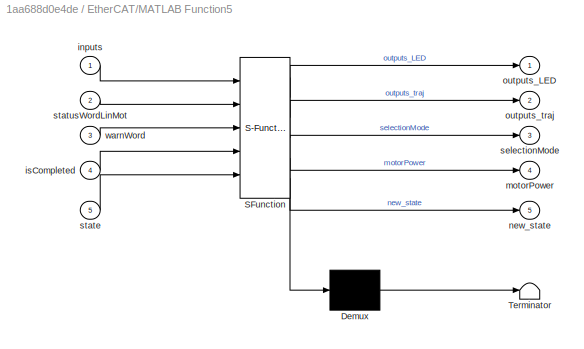
BLOCK [SubSystem] EtherCAT/MATLAB Function5
  ErrorFcn = Stateflow.Translate.translate
  PermitHierarchicalResolution = ExplicitOnly
  Ports = [5, 5]
  RequestExecContextInheritance = off
  SFBlockType = MATLAB Function
  TreatAsAtomicUnit = on
BLOCK [Demux] EtherCAT/MATLAB Function5/ Demux 
  Outputs = 1
  Ports = [1, 1]
BLOCK [S-Function] EtherCAT/MATLAB Function5/ SFunction 
  EnableBusSupport = off
  FunctionName = sf_sfun
  PortCounts = [5 6]
  Ports = [5, 6]
  SFcnIsStateOwnerBlock = off
  SFunctionDeploymentMode = off
  Tag = Stateflow S-Function 8
BLOCK [Terminator] EtherCAT/MATLAB Function5/ Terminator 
BLOCK [Inport] EtherCAT/MATLAB Function5/inputs
BLOCK [Inport] EtherCAT/MATLAB Function5/isCompleted
  Port = 4
BLOCK [Outport] EtherCAT/MATLAB Function5/motorPower
  Port = 4
BLOCK [Outport] EtherCAT/MATLAB Function5/new_state
  Port = 5
BLOCK [Outport] EtherCAT/MATLAB Function5/outputs_LED
BLOCK [Outport] EtherCAT/MATLAB Function5/outputs_traj
  Port = 2
BLOCK [Outport] EtherCAT/MATLAB Function5/selectionMode
  Port = 3
BLOCK [Inport] EtherCAT/MATLAB Function5/state
  Port = 5
BLOCK [Inport] EtherCAT/MATLAB Function5/statusWordLinMot
  Port = 2
BLOCK [Inport] EtherCAT/MATLAB Function5/warnWord
  Port = 3
BLOCK [SubSystem] EtherCAT/MATLAB Function6
  ErrorFcn = Stateflow.Translate.translate
  PermitHierarchicalResolution = ExplicitOnly
  Ports = [1, 1]
  RequestExecContextInheritance = off
  SFBlockType = MATLAB Function
  TreatAsAtomicUnit = on
BLOCK [Demux] EtherCAT/MATLAB Function6/ Demux 
  Outputs = 1
  Ports = [1, 1]
BLOCK [S-Function] EtherCAT/MATLAB Function6/ SFunction 
  EnableBusSupport = off
  FunctionName = sf_sfun
  PortCounts = [1 2]
  Ports = [1, 2]
  SFcnIsStateOwnerBlock = off
  SFunctionDeploymentMode = off
  Tag = Stateflow S-Function 9
BLOCK [Terminator] EtherCAT/MATLAB Function6/ Terminator 
BLOCK [Inport] EtherCAT/MATLAB Function6/u
BLOCK [Outport] EtherCAT/MATLAB Function6/y
BLOCK [SubSystem] EtherCAT/MATLAB Function7
  ErrorFcn = Stateflow.Translate.translate
  PermitHierarchicalResolution = ExplicitOnly
  Ports = [1, 1]
  RequestExecContextInheritance = off
  SFBlockType = MATLAB Function
  TreatAsAtomicUnit = on
BLOCK [Demux] EtherCAT/MATLAB Function7/ Demux 
  Outputs = 1
  Ports = [1, 1]
BLOCK [S-Function] EtherCAT/MATLAB Function7/ SFunction 
  EnableBusSupport = off
  FunctionName = sf_sfun
  PortCounts = [1 2]
  Ports = [1, 2]
  SFcnIsStateOwnerBlock = off
  SFunctionDeploymentMode = off
  Tag = Stateflow S-Function 10
BLOCK [Terminator] EtherCAT/MATLAB Function7/ Terminator 
BLOCK [Inport] EtherCAT/MATLAB Function7/u
BLOCK [Outport] EtherCAT/MATLAB Function7/y
BLOCK [SubSystem] EtherCAT/MATLAB Function8
  ErrorFcn = Stateflow.Translate.translate
  PermitHierarchicalResolution = ExplicitOnly
  Ports = [1, 1]
  RequestExecContextInheritance = off
  SFBlockType = MATLAB Function
  TreatAsAtomicUnit = on
BLOCK [Demux] EtherCAT/MATLAB Function8/ Demux 
  Outputs = 1
  Ports = [1, 1]
BLOCK [S-Function] EtherCAT/MATLAB Function8/ SFunction 
  EnableBusSupport = off
  FunctionName = sf_sfun
  PortCounts = [1 2]
  Ports = [1, 2]
  SFcnIsStateOwnerBlock = off
  SFunctionDeploymentMode = off
  Tag = Stateflow S-Function 11
BLOCK [Terminator] EtherCAT/MATLAB Function8/ Terminator 
BLOCK [Inport] EtherCAT/MATLAB Function8/u
BLOCK [Outport] EtherCAT/MATLAB Function8/y
BLOCK [SubSystem] EtherCAT/MATLAB Function9
  ErrorFcn = Stateflow.Translate.translate
  PermitHierarchicalResolution = ExplicitOnly
  Ports = [5, 2]
  RequestExecContextInheritance = off
  SFBlockType = MATLAB Function
  TreatAsAtomicUnit = on
BLOCK [Demux] EtherCAT/MATLAB Function9/ Demux 
  Outputs = 1
  Ports = [1, 1]
BLOCK [S-Function] EtherCAT/MATLAB Function9/ SFunction 
  EnableBusSupport = off
  FunctionName = sf_sfun
  Parameters = positionCmd,tempsTraj
  PortCounts = [5 3]
  Ports = [5, 3]
  SFcnIsStateOwnerBlock = off
  SFunctionDeploymentMode = off
  Tag = Stateflow S-Function 12
BLOCK [Terminator] EtherCAT/MATLAB Function9/ Terminator 
BLOCK [Outport] EtherCAT/MATLAB Function9/isCompleted
  Port = 2
BLOCK [Inport] EtherCAT/MATLAB Function9/pause
  Port = 2
BLOCK [Inport] EtherCAT/MATLAB Function9/position_from_gabarit_to_standby
  Port = 5
BLOCK [Inport] EtherCAT/MATLAB Function9/stopAtEnd
  Port = 3
BLOCK [Outport] EtherCAT/MATLAB Function9/target
BLOCK [Inport] EtherCAT/MATLAB Function9/trajectorySelector
BLOCK [Inport] EtherCAT/MATLAB Function9/waitForActivation
  Port = 4
BLOCK [Product] EtherCAT/Matrix Multiply
  Multiplication = Matrix(*)
  Ports = [2, 1]
BLOCK [Product] EtherCAT/Matrix Multiply1
  Multiplication = Matrix(*)
  Ports = [2, 1]
BLOCK [Product] EtherCAT/Matrix Multiply2
  Multiplication = Matrix(*)
  Ports = [2, 1]
BLOCK [Display] EtherCAT/Mode
  Decimation = 1
  Ports = [1]
BLOCK [Display] EtherCAT/Mode Selection
  Decimation = 1
  Ports = [1]
BLOCK [Reference] EtherCAT/Mode of Operation Display  REF=slrealtimeethercatlib/EtherCAT PDO Receive
  Ports = [0, 1]
  Priority = 2
  SourceBlock = slrealtimeethercatlib/EtherCAT PDO Receive
  SourceProductBaseCode = XP
  SourceType = ethercat_pdo_receive
BLOCK [Mux] EtherCAT/Mux
  DisplayOption = bar
  Inputs = 3
  Ports = [3, 1]
BLOCK [Mux] EtherCAT/Mux1
  DisplayOption = bar
  Inputs = 2
  Ports = [2, 1]
BLOCK [Mux] EtherCAT/Mux2
  DisplayOption = bar
  Inputs = 2
  Ports = [2, 1]
BLOCK [Mux] EtherCAT/Mux3
  DisplayOption = bar
  Inputs = 2
  Ports = [2, 1]
BLOCK [Mux] EtherCAT/Mux4
  DisplayOption = bar
  Inputs = 2
  Ports = [2, 1]
BLOCK [Mux] EtherCAT/Mux5
  DisplayOption = bar
  Inputs = 2
  Ports = [2, 1]
BLOCK [Mux] EtherCAT/Mux8
  DisplayOption = bar
  Inputs = 16
  Ports = [16, 1]
BLOCK [Display] EtherCAT/Position
  Decimation = 1
  Ports = [1]
BLOCK [Reference] EtherCAT/Position Actual Value  REF=slrealtimeethercatlib/EtherCAT PDO Receive
  Ports = [0, 1]
  Priority = 2
  SourceBlock = slrealtimeethercatlib/EtherCAT PDO Receive
  SourceProductBaseCode = XP
  SourceType = ethercat_pdo_receive
BLOCK [DiscretePulseGenerator] EtherCAT/Pulse WatchDog
  Period = 0.1
  Ports = [0, 1]
  PulseType = Time based
  PulseWidth = 50
BLOCK [Outport] EtherCAT/SW_linmot
  Port = 2
BLOCK [Saturate] EtherCAT/Saturation1
  LowerLimit = 10000
  UpperLimit = 3250000
BLOCK [Scope] EtherCAT/Scope
  Commented = on
  Floating = off
  NumInputPorts = 1
  Ports = [1]
  ScopeSpecificationString = Simulink.scopes.TimeScopeBlockCfg('CurrentConfiguration', extmgr.ConfigurationSet(extmgr.Configuration('Core','General UI',true),extmgr.Configuration('Core','Source UI',true),extmgr.Configuration('Sources','WiredSimulink',true,'DataLoggingVariableName','ScopeData1'),extmgr.Configuration('Visuals','Time Domain',true),extmgr.Configuration('Tools','Plot Navigation',true),extmgr.Configuration('Tools',...<+40ch>
BLOCK [Reference] EtherCAT/Scope   REF=slrealtimeobsoletelib/Obsolete
  Ports = [1]
  SourceBlock = slrealtimeobsoletelib/Obsolete
  SourceProductBaseCode = XP
  SourceType = Obsolete Simulink Real-Time Block
BLOCK [Reference] EtherCAT/Scope 1  REF=slrealtimeobsoletelib/Obsolete
  Ports = [1]
  SourceBlock = slrealtimeobsoletelib/Obsolete
  SourceProductBaseCode = XP
  SourceType = Obsolete Simulink Real-Time Block
BLOCK [Reference] EtherCAT/Scope 2  REF=slrealtimeobsoletelib/Obsolete
  Ports = [1]
  SourceBlock = slrealtimeobsoletelib/Obsolete
  SourceProductBaseCode = XP
  SourceType = Obsolete Simulink Real-Time Block
BLOCK [Reference] EtherCAT/Scope 3  REF=slrealtimeobsoletelib/Obsolete
  Ports = [1]
  SourceBlock = slrealtimeobsoletelib/Obsolete
  SourceProductBaseCode = XP
  SourceType = Obsolete Simulink Real-Time Block
BLOCK [Reference] EtherCAT/Scope 4  REF=slrealtimeobsoletelib/Obsolete
  Ports = [1]
  SourceBlock = slrealtimeobsoletelib/Obsolete
  SourceProductBaseCode = XP
  SourceType = Obsolete Simulink Real-Time Block
BLOCK [Reference] EtherCAT/Scope 5  REF=slrealtimeobsoletelib/Obsolete
  Ports = [1]
  SourceBlock = slrealtimeobsoletelib/Obsolete
  SourceProductBaseCode = XP
  SourceType = Obsolete Simulink Real-Time Block
BLOCK [Reference] EtherCAT/Scope 6  REF=slrealtimeobsoletelib/Obsolete
  Ports = [1]
  SourceBlock = slrealtimeobsoletelib/Obsolete
  SourceProductBaseCode = XP
  SourceType = Obsolete Simulink Real-Time Block
BLOCK [Scope] EtherCAT/Scope Position
  Floating = off
  NumInputPorts = 1
  Ports = [1]
  ScopeSpecificationString = Simulink.scopes.TimeScopeBlockCfg('CurrentConfiguration', extmgr.ConfigurationSet(extmgr.Configuration('Core','General UI',true),extmgr.Configuration('Core','Source UI',true),extmgr.Configuration('Sources','WiredSimulink',true),extmgr.Configuration('Visuals','Time Domain',true,'SerializedDisplays',{struct('MinYLimReal','-172949.00000','MaxYLimReal','1179841.00000','YLabelReal','','MinYLimMag','   ...<+1498ch>
BLOCK [Scope] EtherCAT/Scope1
  Floating = off
  NumInputPorts = 1
  Ports = [1]
  ScopeSpecificationString = Simulink.scopes.TimeScopeBlockCfg('CurrentConfiguration', extmgr.ConfigurationSet(extmgr.Configuration('Core','General UI',true),extmgr.Configuration('Core','Source UI',true),extmgr.Configuration('Sources','WiredSimulink',true,'DataLoggingVariableName','ScopeData1'),extmgr.Configuration('Visuals','Time Domain',true,'SerializedDisplays',{struct('MinYLimReal','-1.00000','MaxYLimReal','1.00000','YLab...<+1467ch>
BLOCK [Scope] EtherCAT/Scope2
  Floating = off
  NumInputPorts = 1
  Ports = [1]
  ScopeSpecificationString = Simulink.scopes.TimeScopeBlockCfg('CurrentConfiguration', extmgr.ConfigurationSet(extmgr.Configuration('Core','General UI',true),extmgr.Configuration('Core','Source UI',true),extmgr.Configuration('Sources','WiredSimulink',true,'DataLoggingVariableName','ScopeData1'),extmgr.Configuration('Visuals','Time Domain',true,'SerializedDisplays',{struct('MinYLimReal','-7314.95098','MaxYLimReal','9734.06863'...<+1766ch>
BLOCK [Scope] EtherCAT/Scope4
  Floating = off
  NumInputPorts = 1
  Ports = [1]
  ScopeSpecificationString = Simulink.scopes.TimeScopeBlockCfg('CurrentConfiguration', extmgr.ConfigurationSet(extmgr.Configuration('Core','General UI',true),extmgr.Configuration('Core','Source UI',true),extmgr.Configuration('Sources','WiredSimulink',true,'DataLoggingVariableName','ScopeData1'),extmgr.Configuration('Visuals','Time Domain',true,'SerializedDisplays',{struct('MinYLimReal','-6400.75','MaxYLimReal','5016.75','YLab...<+1757ch>
BLOCK [Scope] EtherCAT/Scope5
  Floating = off
  NumInputPorts = 1
  Ports = [1]
  ScopeSpecificationString = Simulink.scopes.TimeScopeBlockCfg('CurrentConfiguration', extmgr.ConfigurationSet(extmgr.Configuration('Core','General UI',true),extmgr.Configuration('Core','Source UI',true),extmgr.Configuration('Sources','WiredSimulink',true,'DataLoggingVariableName','ScopeData1'),extmgr.Configuration('Visuals','Time Domain',true,'SerializedDisplays',{struct('MinYLimReal','-795.0495','MaxYLimReal','786.21562','Y...<+1750ch>
BLOCK [Selector] EtherCAT/Selector
  Commented = on
  IndexOptions = Index vector (dialog)
  Indices = [1 2 3]
  InputPortWidth = 16
  OutputSizes = 1
  Ports = [1, 1]
BLOCK [Selector] EtherCAT/Selector1
  IndexOptions = Index vector (dialog)
  Indices = [1 2 3]
  InputPortWidth = 16
  OutputSizes = 1
  Ports = [1, 1]
BLOCK [Selector] EtherCAT/Selector10
  IndexOptions = Index vector (dialog)
  Indices = [4 12]
  InputPortWidth = 16
  OutputSizes = 1
  Ports = [1, 1]
BLOCK [Selector] EtherCAT/Selector11
  IndexOptions = Index vector (dialog)
  Indices = [4 12]
  InputPortWidth = 16
  OutputSizes = 1
  Ports = [1, 1]
BLOCK [Selector] EtherCAT/Selector2
  IndexOptions = Index vector (dialog)
  Indices = [2]
  InputPortWidth = 6
  OutputSizes = 1
  Ports = [1, 1]
BLOCK [Selector] EtherCAT/Selector4
  IndexOptions = Index vector (dialog)
  Indices = [4 12]
  InputPortWidth = 16
  OutputSizes = 1
  Ports = [1, 1]
BLOCK [Selector] EtherCAT/Selector5
  IndexOptions = Index vector (dialog)
  Indices = [4 12]
  InputPortWidth = 16
  OutputSizes = 1
  Ports = [1, 1]
BLOCK [Selector] EtherCAT/Selector6
  IndexOptions = Index vector (dialog)
  Indices = [4 12]
  InputPortWidth = 16
  OutputSizes = 1
  Ports = [1, 1]
BLOCK [Selector] EtherCAT/Selector7
  IndexOptions = Index vector (dialog)
  Indices = [4 12]
  InputPortWidth = 16
  OutputSizes = 1
  Ports = [1, 1]
BLOCK [Selector] EtherCAT/Selector8
  IndexOptions = Index vector (dialog)
  Indices = [4 12]
  InputPortWidth = 16
  OutputSizes = 1
  Ports = [1, 1]
BLOCK [Selector] EtherCAT/Selector9
  IndexOptions = Index vector (dialog)
  Indices = [4 12]
  InputPortWidth = 16
  OutputSizes = 1
  Ports = [1, 1]
BLOCK [SubSystem] EtherCAT/Send Control Word
  Ports = [1]
  RequestExecContextInheritance = off
BLOCK [Reference] EtherCAT/Send Control Word/ControlWord  REF=xpcethercatlib/EtherCAT PDO Transmit 
  Ports = [1]
  Priority = 3
  SourceBlock = xpcethercatlib/EtherCAT PDO Transmit
  SourceProductBaseCode = XP
  SourceType = xpcethercat_tx_var
BLOCK [Reference] EtherCAT/Send Control Word/ControlWord1  REF=xpcethercatlib/EtherCAT PDO Transmit 
  Ports = [1]
  Priority = 3
  SourceBlock = xpcethercatlib/EtherCAT PDO Transmit
  SourceProductBaseCode = XP
  SourceType = xpcethercat_tx_var
BLOCK [Reference] EtherCAT/Send Control Word/ControlWord10  REF=xpcethercatlib/EtherCAT PDO Transmit 
  Commented = on
  Ports = [1]
  Priority = 3
  SourceBlock = xpcethercatlib/EtherCAT PDO Transmit
  SourceProductBaseCode = XP
  SourceType = xpcethercat_tx_var
BLOCK [Reference] EtherCAT/Send Control Word/ControlWord11  REF=xpcethercatlib/EtherCAT PDO Transmit 
  Commented = on
  Ports = [1]
  Priority = 3
  SourceBlock = xpcethercatlib/EtherCAT PDO Transmit
  SourceProductBaseCode = XP
  SourceType = xpcethercat_tx_var
BLOCK [Reference] EtherCAT/Send Control Word/ControlWord12  REF=xpcethercatlib/EtherCAT PDO Transmit 
  Commented = on
  Ports = [1]
  Priority = 3
  SourceBlock = xpcethercatlib/EtherCAT PDO Transmit
  SourceProductBaseCode = XP
  SourceType = xpcethercat_tx_var
BLOCK [Reference] EtherCAT/Send Control Word/ControlWord13  REF=xpcethercatlib/EtherCAT PDO Transmit 
  Commented = on
  Ports = [1]
  Priority = 3
  SourceBlock = xpcethercatlib/EtherCAT PDO Transmit
  SourceProductBaseCode = XP
  SourceType = xpcethercat_tx_var
BLOCK [Reference] EtherCAT/Send Control Word/ControlWord14  REF=xpcethercatlib/EtherCAT PDO Transmit 
  Commented = on
  Ports = [1]
  Priority = 3
  SourceBlock = xpcethercatlib/EtherCAT PDO Transmit
  SourceProductBaseCode = XP
  SourceType = xpcethercat_tx_var
BLOCK [Reference] EtherCAT/Send Control Word/ControlWord15  REF=xpcethercatlib/EtherCAT PDO Transmit 
  Commented = on
  Ports = [1]
  Priority = 3
  SourceBlock = xpcethercatlib/EtherCAT PDO Transmit
  SourceProductBaseCode = XP
  SourceType = xpcethercat_tx_var
BLOCK [Reference] EtherCAT/Send Control Word/ControlWord16  REF=xpcethercatlib/EtherCAT PDO Transmit 
  Commented = on
  Ports = [1]
  Priority = 3
  SourceBlock = xpcethercatlib/EtherCAT PDO Transmit
  SourceProductBaseCode = XP
  SourceType = xpcethercat_tx_var
BLOCK [Reference] EtherCAT/Send Control Word/ControlWord2  REF=xpcethercatlib/EtherCAT PDO Transmit 
  Ports = [1]
  Priority = 3
  SourceBlock = xpcethercatlib/EtherCAT PDO Transmit
  SourceProductBaseCode = XP
  SourceType = xpcethercat_tx_var
BLOCK [Reference] EtherCAT/Send Control Word/ControlWord3  REF=xpcethercatlib/EtherCAT PDO Transmit 
  Ports = [1]
  Priority = 3
  SourceBlock = xpcethercatlib/EtherCAT PDO Transmit
  SourceProductBaseCode = XP
  SourceType = xpcethercat_tx_var
BLOCK [Reference] EtherCAT/Send Control Word/ControlWord4  REF=xpcethercatlib/EtherCAT PDO Transmit 
  Ports = [1]
  Priority = 3
  SourceBlock = xpcethercatlib/EtherCAT PDO Transmit
  SourceProductBaseCode = XP
  SourceType = xpcethercat_tx_var
BLOCK [Reference] EtherCAT/Send Control Word/ControlWord5  REF=xpcethercatlib/EtherCAT PDO Transmit 
  Ports = [1]
  Priority = 3
  SourceBlock = xpcethercatlib/EtherCAT PDO Transmit
  SourceProductBaseCode = XP
  SourceType = xpcethercat_tx_var
BLOCK [Reference] EtherCAT/Send Control Word/ControlWord6  REF=xpcethercatlib/EtherCAT PDO Transmit 
  Ports = [1]
  Priority = 3
  SourceBlock = xpcethercatlib/EtherCAT PDO Transmit
  SourceProductBaseCode = XP
  SourceType = xpcethercat_tx_var
BLOCK [Reference] EtherCAT/Send Control Word/ControlWord7  REF=xpcethercatlib/EtherCAT PDO Transmit 
  Ports = [1]
  Priority = 3
  SourceBlock = xpcethercatlib/EtherCAT PDO Transmit
  SourceProductBaseCode = XP
  SourceType = xpcethercat_tx_var
BLOCK [Reference] EtherCAT/Send Control Word/ControlWord9  REF=xpcethercatlib/EtherCAT PDO Transmit 
  Commented = on
  Ports = [1]
  Priority = 3
  SourceBlock = xpcethercatlib/EtherCAT PDO Transmit
  SourceProductBaseCode = XP
  SourceType = xpcethercat_tx_var
BLOCK [Inport] EtherCAT/Send Control Word/In1
BLOCK [SubSystem] EtherCAT/Send Position
  Ports = [1]
  RequestExecContextInheritance = off
BLOCK [Inport] EtherCAT/Send Position/Commanded Position
BLOCK [Demux] EtherCAT/Send Position/Demux
  Outputs = 8
  Ports = [1, 8]
BLOCK [Demux] EtherCAT/Send Position/Demux1
  Commented = on
  Outputs = 8
  Ports = [1, 8]
BLOCK [Reference] EtherCAT/Send Position/Sent Position  REF=xpcethercatlib/EtherCAT PDO Transmit 
  Ports = [1]
  Priority = 3
  SourceBlock = xpcethercatlib/EtherCAT PDO Transmit
  SourceProductBaseCode = XP
  SourceType = xpcethercat_tx_var
BLOCK [Reference] EtherCAT/Send Position/Sent Position1  REF=xpcethercatlib/EtherCAT PDO Transmit 
  Ports = [1]
  Priority = 3
  SourceBlock = xpcethercatlib/EtherCAT PDO Transmit
  SourceProductBaseCode = XP
  SourceType = xpcethercat_tx_var
BLOCK [Reference] EtherCAT/Send Position/Sent Position10  REF=xpcethercatlib/EtherCAT PDO Transmit 
  Commented = on
  Ports = [1]
  Priority = 3
  SourceBlock = xpcethercatlib/EtherCAT PDO Transmit
  SourceProductBaseCode = XP
  SourceType = xpcethercat_tx_var
BLOCK [Reference] EtherCAT/Send Position/Sent Position11  REF=xpcethercatlib/EtherCAT PDO Transmit 
  Commented = on
  Ports = [1]
  Priority = 3
  SourceBlock = xpcethercatlib/EtherCAT PDO Transmit
  SourceProductBaseCode = XP
  SourceType = xpcethercat_tx_var
BLOCK [Reference] EtherCAT/Send Position/Sent Position12  REF=xpcethercatlib/EtherCAT PDO Transmit 
  Commented = on
  Ports = [1]
  Priority = 3
  SourceBlock = xpcethercatlib/EtherCAT PDO Transmit
  SourceProductBaseCode = XP
  SourceType = xpcethercat_tx_var
BLOCK [Reference] EtherCAT/Send Position/Sent Position13  REF=xpcethercatlib/EtherCAT PDO Transmit 
  Commented = on
  Ports = [1]
  Priority = 3
  SourceBlock = xpcethercatlib/EtherCAT PDO Transmit
  SourceProductBaseCode = XP
  SourceType = xpcethercat_tx_var
BLOCK [Reference] EtherCAT/Send Position/Sent Position14  REF=xpcethercatlib/EtherCAT PDO Transmit 
  Commented = on
  Ports = [1]
  Priority = 3
  SourceBlock = xpcethercatlib/EtherCAT PDO Transmit
  SourceProductBaseCode = XP
  SourceType = xpcethercat_tx_var
BLOCK [Reference] EtherCAT/Send Position/Sent Position15  REF=xpcethercatlib/EtherCAT PDO Transmit 
  Commented = on
  Ports = [1]
  Priority = 3
  SourceBlock = xpcethercatlib/EtherCAT PDO Transmit
  SourceProductBaseCode = XP
  SourceType = xpcethercat_tx_var
BLOCK [Reference] EtherCAT/Send Position/Sent Position2  REF=xpcethercatlib/EtherCAT PDO Transmit 
  Ports = [1]
  Priority = 3
  SourceBlock = xpcethercatlib/EtherCAT PDO Transmit
  SourceProductBaseCode = XP
  SourceType = xpcethercat_tx_var
BLOCK [Reference] EtherCAT/Send Position/Sent Position3  REF=xpcethercatlib/EtherCAT PDO Transmit 
  Ports = [1]
  Priority = 3
  SourceBlock = xpcethercatlib/EtherCAT PDO Transmit
  SourceProductBaseCode = XP
  SourceType = xpcethercat_tx_var
BLOCK [Reference] EtherCAT/Send Position/Sent Position4  REF=xpcethercatlib/EtherCAT PDO Transmit 
  Ports = [1]
  Priority = 3
  SourceBlock = xpcethercatlib/EtherCAT PDO Transmit
  SourceProductBaseCode = XP
  SourceType = xpcethercat_tx_var
BLOCK [Reference] EtherCAT/Send Position/Sent Position5  REF=xpcethercatlib/EtherCAT PDO Transmit 
  Ports = [1]
  Priority = 3
  SourceBlock = xpcethercatlib/EtherCAT PDO Transmit
  SourceProductBaseCode = XP
  SourceType = xpcethercat_tx_var
BLOCK [Reference] EtherCAT/Send Position/Sent Position6  REF=xpcethercatlib/EtherCAT PDO Transmit 
  Ports = [1]
  Priority = 3
  SourceBlock = xpcethercatlib/EtherCAT PDO Transmit
  SourceProductBaseCode = XP
  SourceType = xpcethercat_tx_var
BLOCK [Reference] EtherCAT/Send Position/Sent Position7  REF=xpcethercatlib/EtherCAT PDO Transmit 
  Ports = [1]
  Priority = 3
  SourceBlock = xpcethercatlib/EtherCAT PDO Transmit
  SourceProductBaseCode = XP
  SourceType = xpcethercat_tx_var
BLOCK [Reference] EtherCAT/Send Position/Sent Position8  REF=xpcethercatlib/EtherCAT PDO Transmit 
  Commented = on
  Ports = [1]
  Priority = 3
  SourceBlock = xpcethercatlib/EtherCAT PDO Transmit
  SourceProductBaseCode = XP
  SourceType = xpcethercat_tx_var
BLOCK [Reference] EtherCAT/Send Position/Sent Position9  REF=xpcethercatlib/EtherCAT PDO Transmit 
  Commented = on
  Ports = [1]
  Priority = 3
  SourceBlock = xpcethercatlib/EtherCAT PDO Transmit
  SourceProductBaseCode = XP
  SourceType = xpcethercat_tx_var
BLOCK [SubSystem] EtherCAT/Send mode of opreation
  Ports = [1]
  RequestExecContextInheritance = off
BLOCK [Inport] EtherCAT/Send mode of opreation/In1
BLOCK [Reference] EtherCAT/Send mode of opreation/Mode of Operation  REF=xpcethercatlib/EtherCAT PDO Transmit 
  Ports = [1]
  Priority = 3
  SourceBlock = xpcethercatlib/EtherCAT PDO Transmit
  SourceProductBaseCode = XP
  SourceType = xpcethercat_tx_var
BLOCK [Reference] EtherCAT/Send mode of opreation/Mode of Operation1  REF=xpcethercatlib/EtherCAT PDO Transmit 
  Ports = [1]
  Priority = 3
  SourceBlock = xpcethercatlib/EtherCAT PDO Transmit
  SourceProductBaseCode = XP
  SourceType = xpcethercat_tx_var
BLOCK [Reference] EtherCAT/Send mode of opreation/Mode of Operation10  REF=xpcethercatlib/EtherCAT PDO Transmit 
  Commented = on
  Ports = [1]
  Priority = 3
  SourceBlock = xpcethercatlib/EtherCAT PDO Transmit
  SourceProductBaseCode = XP
  SourceType = xpcethercat_tx_var
BLOCK [Reference] EtherCAT/Send mode of opreation/Mode of Operation11  REF=xpcethercatlib/EtherCAT PDO Transmit 
  Commented = on
  Ports = [1]
  Priority = 3
  SourceBlock = xpcethercatlib/EtherCAT PDO Transmit
  SourceProductBaseCode = XP
  SourceType = xpcethercat_tx_var
BLOCK [Reference] EtherCAT/Send mode of opreation/Mode of Operation12  REF=xpcethercatlib/EtherCAT PDO Transmit 
  Commented = on
  Ports = [1]
  Priority = 3
  SourceBlock = xpcethercatlib/EtherCAT PDO Transmit
  SourceProductBaseCode = XP
  SourceType = xpcethercat_tx_var
BLOCK [Reference] EtherCAT/Send mode of opreation/Mode of Operation13  REF=xpcethercatlib/EtherCAT PDO Transmit 
  Commented = on
  Ports = [1]
  Priority = 3
  SourceBlock = xpcethercatlib/EtherCAT PDO Transmit
  SourceProductBaseCode = XP
  SourceType = xpcethercat_tx_var
BLOCK [Reference] EtherCAT/Send mode of opreation/Mode of Operation14  REF=xpcethercatlib/EtherCAT PDO Transmit 
  Commented = on
  Ports = [1]
  Priority = 3
  SourceBlock = xpcethercatlib/EtherCAT PDO Transmit
  SourceProductBaseCode = XP
  SourceType = xpcethercat_tx_var
BLOCK [Reference] EtherCAT/Send mode of opreation/Mode of Operation15  REF=xpcethercatlib/EtherCAT PDO Transmit 
  Commented = on
  Ports = [1]
  Priority = 3
  SourceBlock = xpcethercatlib/EtherCAT PDO Transmit
  SourceProductBaseCode = XP
  SourceType = xpcethercat_tx_var
BLOCK [Reference] EtherCAT/Send mode of opreation/Mode of Operation16  REF=xpcethercatlib/EtherCAT PDO Transmit 
  Commented = on
  Ports = [1]
  Priority = 3
  SourceBlock = xpcethercatlib/EtherCAT PDO Transmit
  SourceProductBaseCode = XP
  SourceType = xpcethercat_tx_var
BLOCK [Reference] EtherCAT/Send mode of opreation/Mode of Operation2  REF=xpcethercatlib/EtherCAT PDO Transmit 
  Ports = [1]
  Priority = 3
  SourceBlock = xpcethercatlib/EtherCAT PDO Transmit
  SourceProductBaseCode = XP
  SourceType = xpcethercat_tx_var
BLOCK [Reference] EtherCAT/Send mode of opreation/Mode of Operation3  REF=xpcethercatlib/EtherCAT PDO Transmit 
  Ports = [1]
  Priority = 3
  SourceBlock = xpcethercatlib/EtherCAT PDO Transmit
  SourceProductBaseCode = XP
  SourceType = xpcethercat_tx_var
BLOCK [Reference] EtherCAT/Send mode of opreation/Mode of Operation4  REF=xpcethercatlib/EtherCAT PDO Transmit 
  Ports = [1]
  Priority = 3
  SourceBlock = xpcethercatlib/EtherCAT PDO Transmit
  SourceProductBaseCode = XP
  SourceType = xpcethercat_tx_var
BLOCK [Reference] EtherCAT/Send mode of opreation/Mode of Operation5  REF=xpcethercatlib/EtherCAT PDO Transmit 
  Ports = [1]
  Priority = 3
  SourceBlock = xpcethercatlib/EtherCAT PDO Transmit
  SourceProductBaseCode = XP
  SourceType = xpcethercat_tx_var
BLOCK [Reference] EtherCAT/Send mode of opreation/Mode of Operation6  REF=xpcethercatlib/EtherCAT PDO Transmit 
  Ports = [1]
  Priority = 3
  SourceBlock = xpcethercatlib/EtherCAT PDO Transmit
  SourceProductBaseCode = XP
  SourceType = xpcethercat_tx_var
BLOCK [Reference] EtherCAT/Send mode of opreation/Mode of Operation7  REF=xpcethercatlib/EtherCAT PDO Transmit 
  Ports = [1]
  Priority = 3
  SourceBlock = xpcethercatlib/EtherCAT PDO Transmit
  SourceProductBaseCode = XP
  SourceType = xpcethercat_tx_var
BLOCK [Reference] EtherCAT/Send mode of opreation/Mode of Operation9  REF=xpcethercatlib/EtherCAT PDO Transmit 
  Commented = on
  Ports = [1]
  Priority = 3
  SourceBlock = xpcethercatlib/EtherCAT PDO Transmit
  SourceProductBaseCode = XP
  SourceType = xpcethercat_tx_var
BLOCK [SubSystem] EtherCAT/Send velocity
  Commented = on
  Ports = [1]
  RequestExecContextInheritance = off
BLOCK [Inport] EtherCAT/Send velocity/Command velocity
BLOCK [Demux] EtherCAT/Send velocity/Demux4
  Outputs = 8
  Ports = [1, 8]
BLOCK [Reference] EtherCAT/Send velocity/Sent Position10  REF=xpcethercatlib/EtherCAT PDO Transmit 
  Ports = [1]
  Priority = 3
  SourceBlock = xpcethercatlib/EtherCAT PDO Transmit
  SourceProductBaseCode = XP
  SourceType = xpcethercat_tx_var
BLOCK [Reference] EtherCAT/Send velocity/Sent Position11  REF=xpcethercatlib/EtherCAT PDO Transmit 
  Ports = [1]
  Priority = 3
  SourceBlock = xpcethercatlib/EtherCAT PDO Transmit
  SourceProductBaseCode = XP
  SourceType = xpcethercat_tx_var
BLOCK [Reference] EtherCAT/Send velocity/Sent Position12  REF=xpcethercatlib/EtherCAT PDO Transmit 
  Ports = [1]
  Priority = 3
  SourceBlock = xpcethercatlib/EtherCAT PDO Transmit
  SourceProductBaseCode = XP
  SourceType = xpcethercat_tx_var
BLOCK [Reference] EtherCAT/Send velocity/Sent Position13  REF=xpcethercatlib/EtherCAT PDO Transmit 
  Ports = [1]
  Priority = 3
  SourceBlock = xpcethercatlib/EtherCAT PDO Transmit
  SourceProductBaseCode = XP
  SourceType = xpcethercat_tx_var
BLOCK [Reference] EtherCAT/Send velocity/Sent Position14  REF=xpcethercatlib/EtherCAT PDO Transmit 
  Ports = [1]
  Priority = 3
  SourceBlock = xpcethercatlib/EtherCAT PDO Transmit
  SourceProductBaseCode = XP
  SourceType = xpcethercat_tx_var
BLOCK [Reference] EtherCAT/Send velocity/Sent Position15  REF=xpcethercatlib/EtherCAT PDO Transmit 
  Ports = [1]
  Priority = 3
  SourceBlock = xpcethercatlib/EtherCAT PDO Transmit
  SourceProductBaseCode = XP
  SourceType = xpcethercat_tx_var
BLOCK [Reference] EtherCAT/Send velocity/Sent Position8  REF=xpcethercatlib/EtherCAT PDO Transmit 
  Ports = [1]
  Priority = 3
  SourceBlock = xpcethercatlib/EtherCAT PDO Transmit
  SourceProductBaseCode = XP
  SourceType = xpcethercat_tx_var
BLOCK [Reference] EtherCAT/Send velocity/Sent Position9  REF=xpcethercatlib/EtherCAT PDO Transmit 
  Ports = [1]
  Priority = 3
  SourceBlock = xpcethercatlib/EtherCAT PDO Transmit
  SourceProductBaseCode = XP
  SourceType = xpcethercat_tx_var
BLOCK [Display] EtherCAT/State
  Decimation = 1
  Ports = [1]
BLOCK [Reference] EtherCAT/StatuWord from Linmot UPID  REF=slrealtimeethercatlib/EtherCAT PDO Receive
  Ports = [0, 1]
  Priority = 2
  SourceBlock = slrealtimeethercatlib/EtherCAT PDO Receive
  SourceProductBaseCode = XP
  SourceType = ethercat_pdo_receive
BLOCK [Reference] EtherCAT/StatuWord from Linmot UPID1  REF=slrealtimeethercatlib/EtherCAT PDO Receive
  Ports = [0, 1]
  Priority = 2
  SourceBlock = slrealtimeethercatlib/EtherCAT PDO Receive
  SourceProductBaseCode = XP
  SourceType = ethercat_pdo_receive
BLOCK [Reference] EtherCAT/StatuWord from Linmot UPID2  REF=slrealtimeethercatlib/EtherCAT PDO Receive
  Ports = [0, 1]
  Priority = 2
  SourceBlock = slrealtimeethercatlib/EtherCAT PDO Receive
  SourceProductBaseCode = XP
  SourceType = ethercat_pdo_receive
BLOCK [Reference] EtherCAT/StatuWord from Linmot UPID3  REF=slrealtimeethercatlib/EtherCAT PDO Receive
  Ports = [0, 1]
  Priority = 2
  SourceBlock = slrealtimeethercatlib/EtherCAT PDO Receive
  SourceProductBaseCode = XP
  SourceType = ethercat_pdo_receive
BLOCK [Reference] EtherCAT/StatuWord from Linmot UPID4  REF=slrealtimeethercatlib/EtherCAT PDO Receive
  Ports = [0, 1]
  Priority = 2
  SourceBlock = slrealtimeethercatlib/EtherCAT PDO Receive
  SourceProductBaseCode = XP
  SourceType = ethercat_pdo_receive
BLOCK [Reference] EtherCAT/StatuWord from Linmot UPID5  REF=slrealtimeethercatlib/EtherCAT PDO Receive
  Ports = [0, 1]
  Priority = 2
  SourceBlock = slrealtimeethercatlib/EtherCAT PDO Receive
  SourceProductBaseCode = XP
  SourceType = ethercat_pdo_receive
BLOCK [Reference] EtherCAT/StatuWord from Linmot UPID6  REF=slrealtimeethercatlib/EtherCAT PDO Receive
  Ports = [0, 1]
  Priority = 2
  SourceBlock = slrealtimeethercatlib/EtherCAT PDO Receive
  SourceProductBaseCode = XP
  SourceType = ethercat_pdo_receive
BLOCK [Reference] EtherCAT/StatuWord from Linmot UPID7  REF=slrealtimeethercatlib/EtherCAT PDO Receive
  Ports = [0, 1]
  Priority = 2
  SourceBlock = slrealtimeethercatlib/EtherCAT PDO Receive
  SourceProductBaseCode = XP
  SourceType = ethercat_pdo_receive
BLOCK [Reference] EtherCAT/StatuWord from Linmot UPID8  REF=slrealtimeethercatlib/EtherCAT PDO Receive
  Ports = [0, 1]
  Priority = 2
  SourceBlock = slrealtimeethercatlib/EtherCAT PDO Receive
  SourceProductBaseCode = XP
  SourceType = ethercat_pdo_receive
BLOCK [Reference] EtherCAT/StatusWord  REF=slrealtimeethercatlib/EtherCAT PDO Receive
  Ports = [0, 1]
  Priority = 2
  SourceBlock = slrealtimeethercatlib/EtherCAT PDO Receive
  SourceProductBaseCode = XP
  SourceType = ethercat_pdo_receive
BLOCK [Terminator] EtherCAT/Terminator
  Commented = on
BLOCK [UnitDelay] EtherCAT/Unit Delay
  Commented = on
  HasFrameUpgradeWarning = on
  SampleTime = -1
BLOCK [UnitDelay] EtherCAT/Unit Delay1
  HasFrameUpgradeWarning = on
  NameLocation = top
  SampleTime = -1
BLOCK [UnitDelay] EtherCAT/Unit Delay2
  HasFrameUpgradeWarning = on
  NameLocation = top
  SampleTime = -1
BLOCK [Concatenate] EtherCAT/Vector Concatenate
  ConcatenateDimension = 2
  Mode = Multidimensional array
  NumInputs = 8
  Ports = [8, 1]
BLOCK [Gain] EtherCAT/mm to um
  Commented = on
  Gain = 10000
BLOCK [Display] EtherCAT/signaux
  Decimation = 1
  Ports = [1]
BLOCK [Gain] EtherCAT/to linmot unit
  Gain = 10000
BLOCK [PushButtonBlock] Push Button
  ButtonText = STOP!!!
  LabelPosition = Top
BLOCK [RadioButtonGroup] Radio Button
  ButtonGroupName = Mode Selection
  LabelPosition = Hide
  SelectedLabel = Stop mode
BLOCK [Terminator] Terminator
BLOCK [Terminator] Terminator1
BLOCK [Terminator] Terminator2
ANNOTATION EtherCAT: Test 2 boutons 1 lumière
ANNOTATION EtherCAT: Gestion des boutons
ANNOTATION EtherCAT: 4688 = Standby 4663 = Ready to go!!! 536 = Fault 4657 = Fault reset
ANNOTATION EtherCAT: Digital In X4.5 Digital In X4.6 Digital In X4.7 Digital In X4.8 Forced Bit Mask Forced Bit Mask empty empty empty empty empty empty empty empty empty empty
ANNOTATION EtherCAT: Operation Enabled Switch on Active Enable Operation Fault Voltage Enabled Quick Stop Switch on disabled Warning event Handler Active Special Motion Active Target Reached Homed Fatal Error Motion Active Range Indicator 1 Range Indicator 2
ANNOTATION EtherCAT: Operation Enabled Switch on Active Operation Enabled Fault Voltage Enabled Quick Stop Switch on disabled Warning event Handler Active Special Motion Active Target Reached Homed Fatal Error Motion Active Range Indicator 1 Range Indicator 2
ANNOTATION EtherCAT: Gestion des lumières
ANNOTATION EtherCAT: LinMot Warning Word
ANNOTATION EtherCAT: Machine d'état
ANNOTATION EtherCAT: Set control word
ANNOTATION EtherCAT: Stand alone : PCI Bus 0 Slot 25, Otherwise : PCI Bus 3 Slot 0
ANNOTATION EtherCAT: Status Word from LinMot Drive
ANNOTATION EtherCAT: Test 1 lumière clignotante
ANNOTATION EtherCAT/Activation1: Activation
LINE EtherCAT/Activation1/Add:1 -> EtherCAT/Activation1/ControlWord:1
LINE EtherCAT/Activation1/Demux:1 -> EtherCAT/Activation1/Gain:1
LINE EtherCAT/Activation1/Demux:2 -> EtherCAT/Activation1/Gain1:1
LINE EtherCAT/Activation1/Demux:3 -> EtherCAT/Activation1/Gain2:1
LINE EtherCAT/Activation1/Demux:4 -> EtherCAT/Activation1/Gain3:1
LINE EtherCAT/Activation1/Demux:5 -> EtherCAT/Activation1/Gain5:1
LINE EtherCAT/Activation1/Demux:6 -> EtherCAT/Activation1/Gain4:1
LINE EtherCAT/Activation1/EMERGENCY STOP:1 -> EtherCAT/Activation1/controlWord Generator:2
LINE EtherCAT/Activation1/From:1 -> EtherCAT/Activation1/controlWord Generator:1
LINE EtherCAT/Activation1/Gain1:1 -> EtherCAT/Activation1/Add:2
LINE EtherCAT/Activation1/Gain2:1 -> EtherCAT/Activation1/Add:3
LINE EtherCAT/Activation1/Gain3:1 -> EtherCAT/Activation1/Add:4
LINE EtherCAT/Activation1/Gain4:1 -> EtherCAT/Activation1/Add:6
LINE EtherCAT/Activation1/Gain5:1 -> EtherCAT/Activation1/Add:5
LINE EtherCAT/Activation1/Gain:1 -> EtherCAT/Activation1/Add:1
LINE EtherCAT/Activation1/controlWord Generator:1 -> EtherCAT/Activation1/mode of operation:1
LINE EtherCAT/Activation1/controlWord Generator:2 -> EtherCAT/Activation1/Demux:1
LINE EtherCAT/Activation1:1 -> EtherCAT/Data Type Conversion2:1
LINE EtherCAT/Activation1:2 -> EtherCAT/Data Type Conversion1:1
LINE EtherCAT/Actual Motor Position/Cast To Double2:1 -> EtherCAT/Actual Motor Position/Actual Position:1
LINE EtherCAT/Actual Motor Position/Mux6:1 -> EtherCAT/Actual Motor Position/Ticks to mm:1
LINE EtherCAT/Actual Motor Position/Position Actual Value1:1 -> EtherCAT/Actual Motor Position/Mux6:1
LINE EtherCAT/Actual Motor Position/Position Actual Value2:1 -> EtherCAT/Actual Motor Position/Mux6:2
LINE EtherCAT/Actual Motor Position/Position Actual Value3:1 -> EtherCAT/Actual Motor Position/Mux6:3
LINE EtherCAT/Actual Motor Position/Position Actual Value4:1 -> EtherCAT/Actual Motor Position/Mux6:4
LINE EtherCAT/Actual Motor Position/Position Actual Value5:1 -> EtherCAT/Actual Motor Position/Mux6:5
LINE EtherCAT/Actual Motor Position/Position Actual Value6:1 -> EtherCAT/Actual Motor Position/Mux6:6
LINE EtherCAT/Actual Motor Position/Position Actual Value7:1 -> EtherCAT/Actual Motor Position/Mux6:7
LINE EtherCAT/Actual Motor Position/Position Actual Value8:1 -> EtherCAT/Actual Motor Position/Mux6:8
LINE EtherCAT/Actual Motor Position/Ticks to mm:1 -> EtherCAT/Actual Motor Position/Cast To Double2:1
LINE EtherCAT/Actual Motor Position:1 -> EtherCAT/Goto2:1
LINE EtherCAT/Add1:1 -> EtherCAT/Data Type Conversion4:1
LINE EtherCAT/Add:1 -> EtherCAT/Data Type Conversion3:1
LINE EtherCAT/Alimentation/Manual Switch:1 -> EtherCAT/Alimentation/Out1:1
LINE EtherCAT/Alimentation/OFF:1 -> EtherCAT/Alimentation/Manual Switch:1
LINE EtherCAT/Alimentation/ON:1 -> EtherCAT/Alimentation/Manual Switch:2
LINE EtherCAT/Cast To Double2:1 -> EtherCAT/Demux4:1
LINE EtherCAT/Cast To Double3:1 -> EtherCAT/Demux5:1
LINE EtherCAT/Cast To Double4:1 -> EtherCAT/Demux6:1
LINE EtherCAT/Cast To Double5:1 -> EtherCAT/Demux7:1
LINE EtherCAT/Cast To Double6:1 -> EtherCAT/Demux8:1
LINE EtherCAT/Cast To Double7:1 -> EtherCAT/Demux9:1
LINE EtherCAT/Cast To Double8:1 -> EtherCAT/Demux10:1
LINE EtherCAT/Cast To Double9:1 -> EtherCAT/Demux11:1
LINE EtherCAT/Constant19:1 -> EtherCAT/MATLAB Function9:5
LINE EtherCAT/Constant:1 -> EtherCAT/MATLAB Function:1
LINE EtherCAT/Current Drive 10:1 -> EtherCAT/Integer to Bit Converter12:1
LINE EtherCAT/Current Drive 11:1 -> EtherCAT/Integer to Bit Converter13:1
LINE EtherCAT/Current Drive 12:1 -> EtherCAT/Integer to Bit Converter14:1
LINE EtherCAT/Current Drive 13:1 -> EtherCAT/Integer to Bit Converter15:1
LINE EtherCAT/Current Drive 14:1 -> EtherCAT/Integer to Bit Converter16:1
LINE EtherCAT/Current Drive 15:1 -> EtherCAT/Integer to Bit Converter17:1
LINE EtherCAT/Current Drive 16:1 -> EtherCAT/Integer to Bit Converter18:1
LINE EtherCAT/Current Drive 1:1 -> EtherCAT/LOG_Current:1
LINE EtherCAT/Current Drive 2:1 -> EtherCAT/LOG_Current:2
LINE EtherCAT/Current Drive 3:1 -> EtherCAT/LOG_Current:3
LINE EtherCAT/Current Drive 4:1 -> EtherCAT/LOG_Current:4
LINE EtherCAT/Current Drive 5:1 -> EtherCAT/LOG_Current:5
LINE EtherCAT/Current Drive 6:1 -> EtherCAT/LOG_Current:6
LINE EtherCAT/Current Drive 7:1 -> EtherCAT/LOG_Current:7
LINE EtherCAT/Current Drive 8:1 -> EtherCAT/LOG_Current:8
LINE EtherCAT/Current Drive 9:1 -> EtherCAT/Integer to Bit Converter11:1
LINE EtherCAT/Data Type Conversion10:1 -> EtherCAT/Digital Output Word5:1
LINE EtherCAT/Data Type Conversion11:1 -> EtherCAT/Send velocity:1
NET EtherCAT/Data Type Conversion1:1 -> EtherCAT/Display2:1, EtherCAT/Send Control Word:1
LINE EtherCAT/Data Type Conversion2:1 -> EtherCAT/Send mode of opreation:1
LINE EtherCAT/Data Type Conversion3:1 -> EtherCAT/Digital Output Word:1
LINE EtherCAT/Data Type Conversion4:1 -> EtherCAT/Digital Output Word1:1
LINE EtherCAT/Data Type Conversion5:1 -> EtherCAT/Digital Output Word2:1
LINE EtherCAT/Data Type Conversion6:1 -> EtherCAT/Mux1:2
LINE EtherCAT/Data Type Conversion7:1 -> EtherCAT/Mux1:1
LINE EtherCAT/Data Type Conversion8:1 -> EtherCAT/Digital Output Word3:1
LINE EtherCAT/Data Type Conversion9:1 -> EtherCAT/Digital Output Word4:1
NET EtherCAT/Data Type Conversion:1 -> EtherCAT/Scope 3:1, EtherCAT/Send Position:1
LINE EtherCAT/Demux10:1 -> EtherCAT/Goto11:1
LINE EtherCAT/Demux10:2 -> EtherCAT/Goto19:1
LINE EtherCAT/Demux11:1 -> EtherCAT/Goto12:1
LINE EtherCAT/Demux11:2 -> EtherCAT/Goto20:1
LINE EtherCAT/Demux1:1 -> EtherCAT/MATLAB Function1:1
LINE EtherCAT/Demux1:2 -> EtherCAT/MATLAB Function3:1
LINE EtherCAT/Demux1:3 -> EtherCAT/MATLAB Function4:1
LINE EtherCAT/Demux2:1 -> EtherCAT/Mux2:1
LINE EtherCAT/Demux2:2 -> EtherCAT/Matrix Multiply2:2
LINE EtherCAT/Demux2:3 -> EtherCAT/Mux3:1
LINE EtherCAT/Demux2:4 -> EtherCAT/Matrix Multiply1:2
LINE EtherCAT/Demux2:5 -> EtherCAT/Mux4:1
LINE EtherCAT/Demux2:6 -> EtherCAT/Matrix Multiply:2
NET EtherCAT/Demux2:7 -> EtherCAT/Mux2:2, EtherCAT/Mux3:2, EtherCAT/Mux4:2
LINE EtherCAT/Demux3:1 -> EtherCAT/MATLAB Function9:1
LINE EtherCAT/Demux3:2 -> EtherCAT/MATLAB Function9:2
LINE EtherCAT/Demux3:3 -> EtherCAT/MATLAB Function9:3
LINE EtherCAT/Demux3:4 -> EtherCAT/MATLAB Function9:4
LINE EtherCAT/Demux4:1 -> EtherCAT/Goto1:1
LINE EtherCAT/Demux4:2 -> EtherCAT/Goto13:1
LINE EtherCAT/Demux5:1 -> EtherCAT/Goto6:1
LINE EtherCAT/Demux5:2 -> EtherCAT/Goto14:1
LINE EtherCAT/Demux6:1 -> EtherCAT/Goto7:1
LINE EtherCAT/Demux6:2 -> EtherCAT/Goto15:1
LINE EtherCAT/Demux7:1 -> EtherCAT/Goto8:1
LINE EtherCAT/Demux7:2 -> EtherCAT/Goto16:1
LINE EtherCAT/Demux8:1 -> EtherCAT/Goto9:1
LINE EtherCAT/Demux8:2 -> EtherCAT/Goto17:1
LINE EtherCAT/Demux9:1 -> EtherCAT/Goto10:1
LINE EtherCAT/Demux9:2 -> EtherCAT/Goto18:1
LINE EtherCAT/Demux:1 -> EtherCAT/Gain2:1
LINE EtherCAT/Demux:2 -> EtherCAT/Gain3:1
LINE EtherCAT/Demux:3 -> EtherCAT/Terminator:1
LINE EtherCAT/Digital In Word form Linmot UPID:1 -> EtherCAT/Integer to Bit Converter1:1
NET EtherCAT/EtherCAT Init :1 -> EtherCAT/Display1:1, EtherCAT/ECAT_status:1, EtherCAT/Goto:1, EtherCAT/Scope :1
LINE EtherCAT/From10:1 -> EtherCAT/Mux8:7
LINE EtherCAT/From11:1 -> EtherCAT/Mux8:8
LINE EtherCAT/From12:1 -> EtherCAT/Mux8:9
LINE EtherCAT/From13:1 -> EtherCAT/Mux8:10
LINE EtherCAT/From14:1 -> EtherCAT/Mux8:11
LINE EtherCAT/From15:1 -> EtherCAT/Mux8:12
LINE EtherCAT/From16:1 -> EtherCAT/Mux8:13
LINE EtherCAT/From17:1 -> EtherCAT/Mux8:14
LINE EtherCAT/From18:1 -> EtherCAT/Mux8:15
LINE EtherCAT/From19:1 -> EtherCAT/Mux8:16
NET EtherCAT/From1:1 -> EtherCAT/LOG_Erreur:2, EtherCAT/Mux5:2
LINE EtherCAT/From20:1 -> EtherCAT/MATLAB Function5:3
LINE EtherCAT/From21:1 -> EtherCAT/Display7:1
LINE EtherCAT/From22:1 -> EtherCAT/Display8:1
LINE EtherCAT/From23:1 -> EtherCAT/Display9:1
LINE EtherCAT/From24:1 -> EtherCAT/Display10:1
LINE EtherCAT/From25:1 -> EtherCAT/Display12:1
LINE EtherCAT/From26:1 -> EtherCAT/Display13:1
LINE EtherCAT/From27:1 -> EtherCAT/Display14:1
LINE EtherCAT/From28:1 -> EtherCAT/Display11:1
LINE EtherCAT/From2:1 -> EtherCAT/MATLAB Function5:2
LINE EtherCAT/From3:1 -> EtherCAT/Gain1:1
LINE EtherCAT/From4:1 -> EtherCAT/Mux8:1
LINE EtherCAT/From5:1 -> EtherCAT/Mux8:2
LINE EtherCAT/From6:1 -> EtherCAT/Mux8:3
LINE EtherCAT/From7:1 -> EtherCAT/Mux8:4
LINE EtherCAT/From8:1 -> EtherCAT/Mux8:5
LINE EtherCAT/From9:1 -> EtherCAT/Mux8:6
LINE EtherCAT/From:1 -> EtherCAT/Selector2:1
LINE EtherCAT/Gain1:1 -> EtherCAT/Add:2
LINE EtherCAT/Gain2:1 -> EtherCAT/Add1:1
LINE EtherCAT/Gain3:1 -> EtherCAT/Add1:2
LINE EtherCAT/Gain4:1 -> EtherCAT/Data Type Conversion5:1
LINE EtherCAT/Gain:1 -> EtherCAT/Add:1
LINE EtherCAT/Integer to Bit Converter10:1 -> EtherCAT/Selector11:1
NET EtherCAT/Integer to Bit Converter11:1 -> EtherCAT/Goto22:1, EtherCAT/Vector Concatenate:1
NET EtherCAT/Integer to Bit Converter12:1 -> EtherCAT/Goto23:1, EtherCAT/Vector Concatenate:2
NET EtherCAT/Integer to Bit Converter13:1 -> EtherCAT/Goto24:1, EtherCAT/Vector Concatenate:3
NET EtherCAT/Integer to Bit Converter14:1 -> EtherCAT/Goto25:1, EtherCAT/Vector Concatenate:4
NET EtherCAT/Integer to Bit Converter15:1 -> EtherCAT/Goto26:1, EtherCAT/Vector Concatenate:5
NET EtherCAT/Integer to Bit Converter16:1 -> EtherCAT/Goto27:1, EtherCAT/Vector Concatenate:6
NET EtherCAT/Integer to Bit Converter17:1 -> EtherCAT/Goto28:1, EtherCAT/Vector Concatenate:7
NET EtherCAT/Integer to Bit Converter18:1 -> EtherCAT/Goto29:1, EtherCAT/Vector Concatenate:8
NET EtherCAT/Integer to Bit Converter1:1 -> EtherCAT/Digital_IN:1, EtherCAT/Scope 5:1, EtherCAT/Selector1:1, EtherCAT/signaux:1
NET EtherCAT/Integer to Bit Converter2:1 -> EtherCAT/Display4:1, EtherCAT/SW_linmot:1, EtherCAT/Scope 6:1
LINE EtherCAT/Integer to Bit Converter3:1 -> EtherCAT/Selector4:1
LINE EtherCAT/Integer to Bit Converter4:1 -> EtherCAT/Selector5:1
LINE EtherCAT/Integer to Bit Converter5:1 -> EtherCAT/Selector6:1
LINE EtherCAT/Integer to Bit Converter6:1 -> EtherCAT/Selector7:1
LINE EtherCAT/Integer to Bit Converter7:1 -> EtherCAT/Selector8:1
LINE EtherCAT/Integer to Bit Converter8:1 -> EtherCAT/Selector9:1
LINE EtherCAT/Integer to Bit Converter9:1 -> EtherCAT/Selector10:1
LINE EtherCAT/Integer to Bit Converter:1 -> EtherCAT/Display3:1
LINE EtherCAT/LOG_Acceleration:1 -> EtherCAT/Scope2:1
LINE EtherCAT/LOG_Current:1 -> EtherCAT/Scope4:1
LINE EtherCAT/LOG_Erreur:1 -> EtherCAT/Erreur:1
NET EtherCAT/LOG_Vitesse:1 -> EtherCAT/LOG_Acceleration:1, EtherCAT/Scope5:1, EtherCAT/mm to um:1
LINE EtherCAT/MATLAB Function1:1 -> EtherCAT/Mux:1
LINE EtherCAT/MATLAB Function2:1 -> EtherCAT/Unit Delay:1
LINE EtherCAT/MATLAB Function3:1 -> EtherCAT/Mux:2
LINE EtherCAT/MATLAB Function4:1 -> EtherCAT/Mux:3
LINE EtherCAT/MATLAB Function5:1 -> EtherCAT/Demux2:1
LINE EtherCAT/MATLAB Function5:2 -> EtherCAT/Demux3:1
NET EtherCAT/MATLAB Function5:3 -> EtherCAT/Goto4:1, EtherCAT/Mode Selection:1
NET EtherCAT/MATLAB Function5:4 -> EtherCAT/Display6:1, EtherCAT/Goto5:1
NET EtherCAT/MATLAB Function5:5 -> EtherCAT/State:1, EtherCAT/Unit Delay1:1
LINE EtherCAT/MATLAB Function6:1 -> EtherCAT/Matrix Multiply2:1
LINE EtherCAT/MATLAB Function7:1 -> EtherCAT/Matrix Multiply1:1
LINE EtherCAT/MATLAB Function8:1 -> EtherCAT/Matrix Multiply:1
NET EtherCAT/MATLAB Function9:1 -> EtherCAT/LOG_Erreur:1, EtherCAT/LOG_Vitesse:1, EtherCAT/Mux5:1, EtherCAT/to linmot unit:1
LINE EtherCAT/MATLAB Function9:2 -> EtherCAT/Unit Delay2:1
LINE EtherCAT/MATLAB Function:1 -> EtherCAT/Gain4:1
LINE EtherCAT/Matrix Multiply1:1 -> EtherCAT/Data Type Conversion9:1
LINE EtherCAT/Matrix Multiply2:1 -> EtherCAT/Data Type Conversion8:1
LINE EtherCAT/Matrix Multiply:1 -> EtherCAT/Data Type Conversion10:1
LINE EtherCAT/Mode of Operation Display:1 -> EtherCAT/Mode:1
LINE EtherCAT/Mux1:1 -> EtherCAT/MATLAB Function5:1
LINE EtherCAT/Mux2:1 -> EtherCAT/MATLAB Function6:1
LINE EtherCAT/Mux3:1 -> EtherCAT/MATLAB Function7:1
LINE EtherCAT/Mux4:1 -> EtherCAT/MATLAB Function8:1
LINE EtherCAT/Mux5:1 -> EtherCAT/Commande et réelle:1
LINE EtherCAT/Mux8:1 -> EtherCAT/Goto21:1
NET EtherCAT/Mux:1 -> EtherCAT/Data Type Conversion7:1, EtherCAT/Scope1:1
NET EtherCAT/Position Actual Value:1 -> EtherCAT/Position:1, EtherCAT/Scope 2:1, EtherCAT/Scope 4:1, EtherCAT/Scope Position:1
LINE EtherCAT/Pulse WatchDog:1 -> EtherCAT/Gain:1
LINE EtherCAT/Saturation1:1 -> EtherCAT/Data Type Conversion:1
LINE EtherCAT/Selector10:1 -> EtherCAT/Cast To Double8:1
LINE EtherCAT/Selector11:1 -> EtherCAT/Cast To Double9:1
LINE EtherCAT/Selector1:1 -> EtherCAT/Demux1:1
LINE EtherCAT/Selector2:1 -> EtherCAT/Data Type Conversion6:1
LINE EtherCAT/Selector4:1 -> EtherCAT/Cast To Double2:1
LINE EtherCAT/Selector5:1 -> EtherCAT/Cast To Double3:1
LINE EtherCAT/Selector6:1 -> EtherCAT/Cast To Double4:1
LINE EtherCAT/Selector7:1 -> EtherCAT/Cast To Double5:1
LINE EtherCAT/Selector8:1 -> EtherCAT/Cast To Double6:1
LINE EtherCAT/Selector9:1 -> EtherCAT/Cast To Double7:1
LINE EtherCAT/Selector:1 -> EtherCAT/Demux:1
NET EtherCAT/Send Control Word/In1:1 -> EtherCAT/Send Control Word/ControlWord1:1, EtherCAT/Send Control Word/ControlWord2:1, EtherCAT/Send Control Word/ControlWord3:1, EtherCAT/Send Control Word/ControlWord4:1, EtherCAT/Send Control Word/ControlWord5:1, EtherCAT/Send Control Word/ControlWord6:1, EtherCAT/Send Control Word/ControlWord7:1, EtherCAT/Send Control Word/ControlWord:1
LINE EtherCAT/Send Position/Commanded Position:1 -> EtherCAT/Send Position/Demux:1
LINE EtherCAT/Send Position/Demux1:1 -> EtherCAT/Send Position/Sent Position8:1
LINE EtherCAT/Send Position/Demux1:2 -> EtherCAT/Send Position/Sent Position9:1
LINE EtherCAT/Send Position/Demux1:3 -> EtherCAT/Send Position/Sent Position10:1
LINE EtherCAT/Send Position/Demux1:4 -> EtherCAT/Send Position/Sent Position11:1
LINE EtherCAT/Send Position/Demux1:5 -> EtherCAT/Send Position/Sent Position12:1
LINE EtherCAT/Send Position/Demux1:6 -> EtherCAT/Send Position/Sent Position13:1
LINE EtherCAT/Send Position/Demux1:7 -> EtherCAT/Send Position/Sent Position14:1
LINE EtherCAT/Send Position/Demux1:8 -> EtherCAT/Send Position/Sent Position15:1
LINE EtherCAT/Send Position/Demux:1 -> EtherCAT/Send Position/Sent Position:1
LINE EtherCAT/Send Position/Demux:2 -> EtherCAT/Send Position/Sent Position1:1
LINE EtherCAT/Send Position/Demux:3 -> EtherCAT/Send Position/Sent Position2:1
LINE EtherCAT/Send Position/Demux:4 -> EtherCAT/Send Position/Sent Position3:1
LINE EtherCAT/Send Position/Demux:5 -> EtherCAT/Send Position/Sent Position4:1
LINE EtherCAT/Send Position/Demux:6 -> EtherCAT/Send Position/Sent Position5:1
LINE EtherCAT/Send Position/Demux:7 -> EtherCAT/Send Position/Sent Position6:1
LINE EtherCAT/Send Position/Demux:8 -> EtherCAT/Send Position/Sent Position7:1
NET EtherCAT/Send mode of opreation/In1:1 -> EtherCAT/Send mode of opreation/Mode of Operation1:1, EtherCAT/Send mode of opreation/Mode of Operation2:1, EtherCAT/Send mode of opreation/Mode of Operation3:1, EtherCAT/Send mode of opreation/Mode of Operation4:1, EtherCAT/Send mode of opreation/Mode of Operation5:1, EtherCAT/Send mode of opreation/Mode of Operation6:1, EtherCAT/Send mode of opreation/Mode of Operation7:1, EtherCAT/Send mode of opreation/Mode of Operation:1
LINE EtherCAT/Send velocity/Command velocity:1 -> EtherCAT/Send velocity/Demux4:1
LINE EtherCAT/Send velocity/Demux4:1 -> EtherCAT/Send velocity/Sent Position8:1
LINE EtherCAT/Send velocity/Demux4:2 -> EtherCAT/Send velocity/Sent Position9:1
LINE EtherCAT/Send velocity/Demux4:3 -> EtherCAT/Send velocity/Sent Position10:1
LINE EtherCAT/Send velocity/Demux4:4 -> EtherCAT/Send velocity/Sent Position11:1
LINE EtherCAT/Send velocity/Demux4:5 -> EtherCAT/Send velocity/Sent Position12:1
LINE EtherCAT/Send velocity/Demux4:6 -> EtherCAT/Send velocity/Sent Position13:1
LINE EtherCAT/Send velocity/Demux4:7 -> EtherCAT/Send velocity/Sent Position14:1
LINE EtherCAT/Send velocity/Demux4:8 -> EtherCAT/Send velocity/Sent Position15:1
LINE EtherCAT/StatuWord from Linmot UPID1:1 -> EtherCAT/Integer to Bit Converter3:1
LINE EtherCAT/StatuWord from Linmot UPID2:1 -> EtherCAT/Integer to Bit Converter4:1
LINE EtherCAT/StatuWord from Linmot UPID3:1 -> EtherCAT/Integer to Bit Converter5:1
LINE EtherCAT/StatuWord from Linmot UPID4:1 -> EtherCAT/Integer to Bit Converter6:1
LINE EtherCAT/StatuWord from Linmot UPID5:1 -> EtherCAT/Integer to Bit Converter7:1
LINE EtherCAT/StatuWord from Linmot UPID6:1 -> EtherCAT/Integer to Bit Converter8:1
LINE EtherCAT/StatuWord from Linmot UPID7:1 -> EtherCAT/Integer to Bit Converter9:1
LINE EtherCAT/StatuWord from Linmot UPID8:1 -> EtherCAT/Integer to Bit Converter10:1
LINE EtherCAT/StatuWord from Linmot UPID:1 -> EtherCAT/Integer to Bit Converter2:1
NET EtherCAT/StatusWord:1 -> EtherCAT/Display:1, EtherCAT/Integer to Bit Converter:1, EtherCAT/Scope 1:1
LINE EtherCAT/Unit Delay1:1 -> EtherCAT/MATLAB Function5:5
LINE EtherCAT/Unit Delay2:1 -> EtherCAT/MATLAB Function5:4
LINE EtherCAT/Unit Delay:1 -> EtherCAT/MATLAB Function2:2
LINE EtherCAT/Vector Concatenate:1 -> EtherCAT/Goto3:1
LINE EtherCAT/mm to um:1 -> EtherCAT/Data Type Conversion11:1
LINE EtherCAT/to linmot unit:1 -> EtherCAT/Saturation1:1
LINE EtherCAT:1 -> Terminator:1
LINE EtherCAT:2 -> Terminator1:1
LINE EtherCAT:3 -> Terminator2:1
note: NET lines group one-source signal fan-out (src -> all destinations, sorted); 1:1 wires keep LINE
CHART EtherCAT/MATLAB Function8 states=1 transitions=1
  STATE_LABEL 'eML_blk_kernel()'
  STATE_LABEL 'SCRIPT:\nfunction y = clignote(u)\n\n\nfrequence_clignotement = 1; % 1 fois par seconde\nfrequence_solver = 1000; % Hz\n\nmode = u(1);\n\nreset_counter = u(2);\n\npersistent etat;\nif isempty(etat)\n    etat = 0; % Éteinte\nend\n\npersistent i;\nif isempty(i)\n    i = 1;\nelseif reset_counter == 1\n    i = 1;\n    etat = 0;\n    mode = 0;\nend\n\n\n\nif mode == 0\n    etat = 0; % Éteinte\n    \nelseif mode == 1\n      \n    etat...<+460ch>'  <repeated x3 — deduplicated; at blocks: MATLAB Function8, MATLAB Function6, MATLAB Function7>
CHART EtherCAT/MATLAB Function9 states=1 transitions=1
  STATE_LABEL 'eML_blk_kernel()'
  STATE_LABEL 'SCRIPT:\nfunction [target,isCompleted] = trajectoryManager(trajectorySelector,pause,stopAtEnd,waitForActivation,position_from_gabarit_to_standby, positionCmd, tempsTraj)\n\n\t% Constants declaration\n\tpersistent index %index of the table trajectory\n\tif isempty(index)\n\t\tindex = 1;\n\tend\n\t\n\t\n\tpersistent flag_stopAtEnd % To stop the endless loop trajectory at the end of current trajectory\n    if isempty(fl...<+3595ch>'
CHART EtherCAT/Activation1/controlWord Generator states=1 transitions=1
  STATE_LABEL 'eML_blk_kernel()'
  STATE_LABEL 'SCRIPT:\nfunction [mode, controlword] = fcn(action, stop)\n%#codegen\n\npersistent power\nif isempty(power)\n    power = 0;\nend\npersistent homing\nif isempty(homing)\n    homing = 0;\nend\n\ncontrolword = [0;0;1;0;0;0];\nmode = 8;\nif stop == 0\n    if action==1 %arret\n        controlword = [0;0;1;0;0;0];\n        power = 0;\n    elseif action==2 %homing de la position du moteur\n        mode = 6;\n        if power...<+559ch>'
CHART EtherCAT/MATLAB Function states=1 transitions=1
  STATE_LABEL 'eML_blk_kernel()'
  STATE_LABEL "SCRIPT:\nfunction y = clignote(u)\n\n\nmode = u(1);\n\nfrequence_clignotement = 1; % 1 fois par seconde\nfrequence_solver = 1000; % Hz\n\n\n\npersistent i;\nif isempty(i)\n    i = 1;\n% elseif resetCounter == 1 % Changement d'état\n%     i = 1;\nend\n\npersistent etat;\nif isempty(etat)\n    etat = 0; % Éteinte\nend\n\nif mode == 0\n    etat = 0; % Éteinte\n    \nelseif mode == 1\n    etat = 1; % Allumée\n    \nelseif mode ==...<+425ch>"
CHART EtherCAT/MATLAB Function1 states=1 transitions=1
  STATE_LABEL 'eML_blk_kernel()'
  STATE_LABEL 'SCRIPT:\n% This function determines if a button has been pressed, in other words, if\n% a rising edge followed by a falling edge has been detected.\n\n% buttonState [0,1]\n\nfunction isPressed = buttonPressed(buttonState)\n\n\nbuttonState = double(buttonState);\n\n% Variable declaration\n\nfrequence_solver = 1000; % Hz\n\nminimumPulseWidth = 0.1*frequence_solver; % Minimum allowable pulse width to accept pushed ...<+960ch>'
CHART EtherCAT/MATLAB Function2 states=1 transitions=1
  STATE_LABEL 'eML_blk_kernel()'
  STATE_LABEL 'SCRIPT:\nfunction [new_state,output] = fcn(input,state)\n\nSTATE_INIT = 0; \nSTATE_WAIT_ECAT = 1; % wait ecat 8\nSTATE_WAIT_GABARIT_BUTTON = 2; \nSTATE_CALIBRATION = 3; % set offsets for actuators\nSTATE_WAIT_INIT_MOVE_BUTTON = 4; \nSTATE_DO_INITIAL_MOVE = 5; \nSTATE_WAIT_NEW_TRAJ_BUTTON = 6; \nSTATE_DO_REFERENCE_MOVE = 7; \nSTATE_DO_REFERENCE_MOVE_LAST = 8; \nSTATE_END = 100; \n\necat_state = input(1); \nbutton...<+1858ch>'
CHART EtherCAT/MATLAB Function3 states=1 transitions=1
  STATE_LABEL 'eML_blk_kernel()'
  STATE_LABEL 'SCRIPT:\n% This function determines if a button has been pressed, in other words, if\n% a rising edge followed by a falling edge has been detected.\n\n% buttonState [0,1]\n\nfunction isPressed = buttonPressed(buttonState)\n\n\nbuttonState = double(buttonState);\n\n% Variable declaration\n\nfrequence_solver = 1000; % Hz\n\nminimumPulseWidth = 0.1*frequence_solver; % Minimum allowable pulse width to accept pushed ...<+987ch>'
CHART EtherCAT/MATLAB Function4 states=1 transitions=1
  STATE_LABEL 'eML_blk_kernel()'
  STATE_LABEL 'SCRIPT:\n% This function determines if a button has been pressed, in other words, if\n% a rising edge followed by a falling edge has been detected.\n\n% buttonState [0,1]\n\nfunction isPressed = buttonPressed(buttonState)\n\n\nbuttonState = double(buttonState);\n\n% Variable declaration\n\nfrequence_solver = 1000; % Hz\n\nminimumPulseWidth = 0.1*frequence_solver; % Minimum allowable pulse width to accept pushed ...<+987ch>'
CHART EtherCAT/MATLAB Function5 states=1 transitions=1
  STATE_LABEL 'eML_blk_kernel()'
  STATE_LABEL 'SCRIPT:\nfunction [outputs_LED,outputs_traj,selectionMode,motorPower,new_state] = stateMachine(inputs,statusWordLinMot, warnWord,isCompleted,state)\n\nSTATE_INIT = 0; \nSTATE_WAIT_ECAT = 1; % wait ecat 8\nSTATE_WAIT_GABARIT_BUTTON = 2; % wait until the user has placed the gabarit\nSTATE_CALIBRATION = 3; % set offsets for actuators\nSTATE_WAIT_BUTTON_INIT_MOVE_TO_STANDBY = 4; \nSTATE_MOVE_TO_STANDBY_FROM_G...<+3608ch>'
CHART EtherCAT/MATLAB Function6 states=1 transitions=1
  STATE_LABEL 'eML_blk_kernel()'
CHART EtherCAT/MATLAB Function7 states=1 transitions=1
  STATE_LABEL 'eML_blk_kernel()'
CHART  states=0 transitions=0
CHART  states=0 transitions=0
CHART  states=0 transitions=0
CHART  states=0 transitions=0
CHART  states=0 transitions=0
CHART  states=0 transitions=0
CHART  states=0 transitions=0
CHART  states=0 transitions=0
CHART  states=0 transitions=0
CHART  states=0 transitions=0
CHART  states=0 transitions=0
